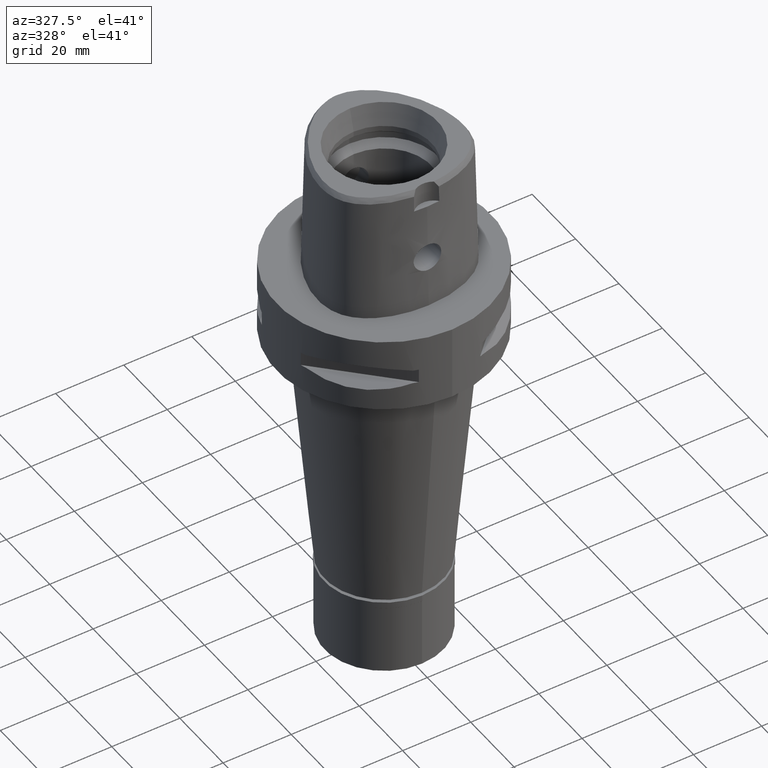
[diagram: clean part render]
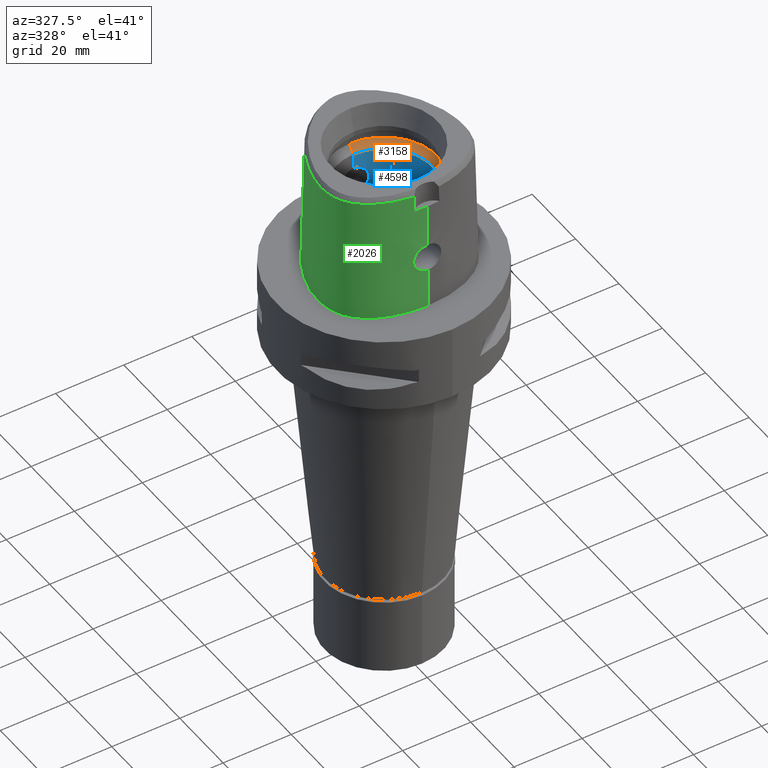
[diagram: same view with three faces highlighted in distinct colors, each labeled with its STEP entity id]
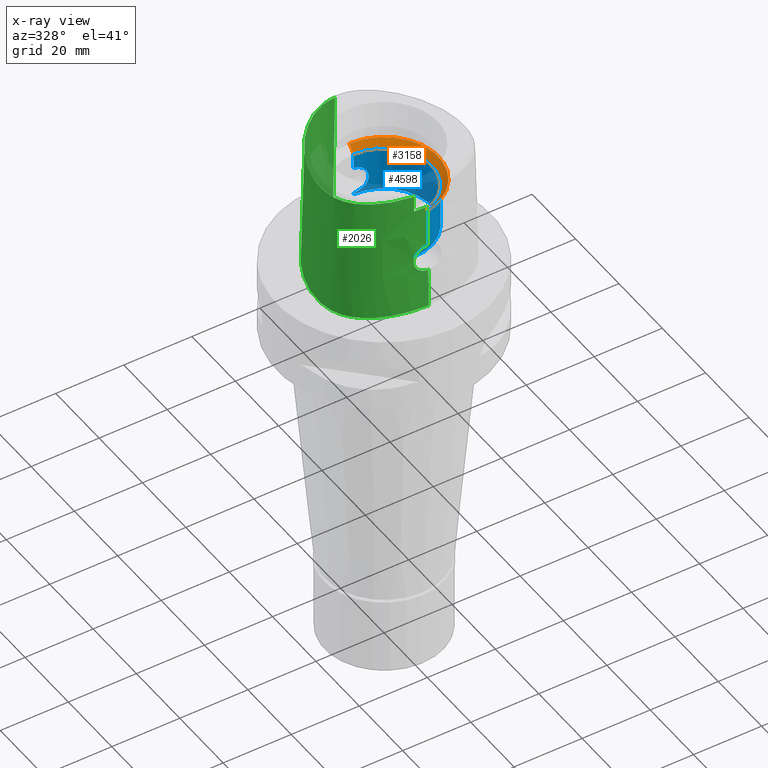
[diagram: x-ray of the same camera — body ghosted, the three highlighted faces saturated]
A machine part, auxiliary view with three faces highlighted in distinct colors.
The next image is the same camera in x-ray (body ghosted, the three faces saturated) — at least one of them is partly hidden behind the body in this view.
Their STEP definitions:

[orange] entity #3158 — the highlighted conical surface has half-angle 45 deg.
#96 = CARTESIAN_POINT ( 'NONE',  ( 0.0000000000000000000, -14.00000000000000000, 24.19999999999999929 ) ) ;
#143 = AXIS2_PLACEMENT_3D ( 'NONE', #2903, #1279, #3241 ) ;
#226 = AXIS2_PLACEMENT_3D ( 'NONE', #4396, #4103, #544 ) ;
#401 = AXIS2_PLACEMENT_3D ( 'NONE', #2883, #2066, #4830 ) ;
#474 = VECTOR ( 'NONE', #842, 1000.000000000000114 ) ;
#544 = DIRECTION ( 'NONE',  ( 0.0000000000000000000, -1.000000000000000000, 0.0000000000000000000 ) ) ;
#842 = DIRECTION ( 'NONE',  ( 0.0000000000000000000, -0.7071067811865474617, 0.7071067811865474617 ) ) ;
#940 = VERTEX_POINT ( 'NONE', #3439 ) ;
#947 = FACE_OUTER_BOUND ( 'NONE', #4611, .T. ) ;
#1107 = CARTESIAN_POINT ( 'NONE',  ( 0.0000000000000000000, 14.00000000000000000, 24.19999999999999929 ) ) ;
#1114 = EDGE_CURVE ( 'NONE', #1849, #4822, #2137, .T. ) ;
#1279 = DIRECTION ( 'NONE',  ( 0.0000000000000000000, 0.0000000000000000000, 1.000000000000000000 ) ) ;
#1510 = DIRECTION ( 'NONE',  ( 0.0000000000000000000, 0.7071067811865474617, 0.7071067811865474617 ) ) ;
#1692 = LINE ( 'NONE', #3246, #474 ) ;
#1698 = CARTESIAN_POINT ( 'NONE',  ( 0.0000000000000000000, 16.00000000000000000, 26.20000000000000284 ) ) ;
#1849 = VERTEX_POINT ( 'NONE', #96 ) ;
#1977 = VECTOR ( 'NONE', #1510, 1000.000000000000114 ) ;
#2066 = DIRECTION ( 'NONE',  ( 0.0000000000000000000, 0.0000000000000000000, -1.000000000000000000 ) ) ;
#2137 = CIRCLE ( 'NONE', #226, 14.00000000000000000 ) ;
#2504 = EDGE_CURVE ( 'NONE', #1849, #940, #1692, .T. ) ;
#2883 = CARTESIAN_POINT ( 'NONE',  ( 0.0000000000000000000, 0.0000000000000000000, 26.20000000000000284 ) ) ;
#2903 = CARTESIAN_POINT ( 'NONE',  ( 0.0000000000000000000, 0.0000000000000000000, 25.19999999999999929 ) ) ;
#2930 = ORIENTED_EDGE ( 'NONE', *, *, #1114, .F. ) ;
#3158 = ADVANCED_FACE ( 'NONE', ( #947 ), #5022, .F. ) ;
#3241 = DIRECTION ( 'NONE',  ( 0.0000000000000000000, 1.000000000000000000, 0.0000000000000000000 ) ) ;
#3246 = CARTESIAN_POINT ( 'NONE',  ( 0.0000000000000000000, -14.00000000000000000, 24.19999999999999929 ) ) ;
#3439 = CARTESIAN_POINT ( 'NONE',  ( 0.0000000000000000000, -16.00000000000000000, 26.20000000000000284 ) ) ;
#3483 = LINE ( 'NONE', #5057, #1977 ) ;
#3593 = ORIENTED_EDGE ( 'NONE', *, *, #2504, .T. ) ;
#3876 = ORIENTED_EDGE ( 'NONE', *, *, #3993, .F. ) ;
#3993 = EDGE_CURVE ( 'NONE', #4822, #4203, #3483, .T. ) ;
#4081 = EDGE_CURVE ( 'NONE', #4203, #940, #4444, .T. ) ;
#4103 = DIRECTION ( 'NONE',  ( 0.0000000000000000000, 0.0000000000000000000, 1.000000000000000000 ) ) ;
#4203 = VERTEX_POINT ( 'NONE', #1698 ) ;
#4396 = CARTESIAN_POINT ( 'NONE',  ( 0.0000000000000000000, 0.0000000000000000000, 24.19999999999999929 ) ) ;
#4444 = CIRCLE ( 'NONE', #401, 16.00000000000000000 ) ;
#4539 = ORIENTED_EDGE ( 'NONE', *, *, #4081, .F. ) ;
#4611 = EDGE_LOOP ( 'NONE', ( #4539, #3876, #2930, #3593 ) ) ;
#4822 = VERTEX_POINT ( 'NONE', #1107 ) ;
#4830 = DIRECTION ( 'NONE',  ( 0.0000000000000000000, 1.000000000000000000, 0.0000000000000000000 ) ) ;
#5022 = CONICAL_SURFACE ( 'NONE', #143, 15.00000000000000000, 0.7853981633972997312 ) ;
#5057 = CARTESIAN_POINT ( 'NONE',  ( 0.0000000000000000000, 14.00000000000000000, 24.19999999999999929 ) ) ;

[blue] entity #4598 — the highlighted cylindrical surface (partial cylindrical patch) has radius 14 mm, axis along (0, 0, -1).
#65 = AXIS2_PLACEMENT_3D ( 'NONE', #3471, #3046, #3545 ) ;
#90 = CARTESIAN_POINT ( 'NONE',  ( 2.217806395109848783, 13.82320634840191609, 12.11121632281193605 ) ) ;
#96 = CARTESIAN_POINT ( 'NONE',  ( 0.0000000000000000000, -14.00000000000000000, 24.19999999999999929 ) ) ;
#112 = CARTESIAN_POINT ( 'NONE',  ( 2.083402352693820347, 13.84411649686240153, 12.02679904731587435 ) ) ;
#120 = CARTESIAN_POINT ( 'NONE',  ( 0.5031329879872217248, -13.99299628181930721, 19.52713608390235223 ) ) ;
#134 = CARTESIAN_POINT ( 'NONE',  ( 2.987551070598235103, 13.67820116345343351, 12.75916637442935020 ) ) ;
#167 = CARTESIAN_POINT ( 'NONE',  ( 2.128115661502098632, 13.83734960245050161, 12.05387220701158668 ) ) ;
#176 = CARTESIAN_POINT ( 'NONE',  ( 3.754236443711725268, -13.48734669257251717, 13.98069631227824061 ) ) ;
#191 = CARTESIAN_POINT ( 'NONE',  ( 4.050104837865987406, 13.40137507185002264, 15.25494482419060205 ) ) ;
#198 = CARTESIAN_POINT ( 'NONE',  ( 2.225307842471148767, -13.82200032481050300, 18.88386244170732198 ) ) ;
#220 = B_SPLINE_CURVE_WITH_KNOTS ( 'NONE', 3,
 ( #911, #2815, #120, #1655, #2452, #4397, #1707, #2430, #941, #492, #1326, #2512, #547, #4012, #2125, #460, #2043, #1272, #3629, #2839, #198, #2578, #3447, #4969, #223, #3019, #4187, #3783, #641, #2969, #4595, #3392, #674, #2252, #254, #2198, #4106, #2628, #3844, #1866, #2227, #2994, #4549, #3739, #1472, #1042, #5015, #1400, #1020, #3048, #1067, #1814, #3363, #4214, #3813, #280, #4518, #2533, #4163, #2600, #568, #2151, #618, #4630, #4991, #176, #1426, #1763, #3340, #4913, #1373, #2178, #2941, #990, #1841, #2556, #4573, #4936, #3420, #1448, #1788, #4138, #596, #3763, #383, #4345, #1968, #4712, #4739, #1552, #3523, #305, #1887, #5044, #4684, #5097, #2657, #4301, #3963, #3546, #1923, #778, #409, #1581, #3104, #2331, #1946, #1201, #4660 ),
 .UNSPECIFIED., .F., .F.,
 ( 4, 2, 2, 1, 1, 2, 2, 2, 2, 1, 1, 1, 2, 2, 2, 2, 1, 2, 2, 2, 2, 1, 1, 1, 2, 2, 2, 2, 1, 1, 2, 2, 2, 2, 2, 2, 1, 1, 1, 2, 2, 2, 2, 1, 1, 1, 2, 2, 2, 2, 2, 2, 2, 2, 1, 1, 1, 2, 2, 2, 2, 1, 2, 2, 4 ),
 ( 0.0000000000000000000, 0.06250000000000927036, 0.09375000000001382228, 0.1093750000000160705, 0.1171875000000173056, 0.1210937500000179301, 0.1250000000000185407, 0.1562500000000231204, 0.1718750000000253686, 0.1796875000000265343, 0.1835937500000270617, 0.1855468750000273392, 0.1865234375000274503, 0.1875000000000275613, 0.2187500000000220102, 0.2343750000000194844, 0.2421875000000182354, 0.2460937500000173472, 0.2500000000000164313, 0.2812500000000076605, 0.2968750000000029976, 0.3046875000000007216, 0.3085937499999996114, 0.3105468749999990008, 0.3115234374999987788, 0.3124999999999986122, 0.3437499999999862887, 0.3593749999999801270, 0.3671874999999770739, 0.3710937499999751865, 0.3730468749999741873, 0.3749999999999731881, 0.4374999999999590883, 0.4999999999999449329, 0.5624999999999307221, 0.5937499999999237277, 0.6093749999999201750, 0.6171874999999185096, 0.6210937499999176215, 0.6230468749999172884, 0.6249999999999170663, 0.6562499999999140687, 0.6718749999999126254, 0.6796874999999118483, 0.6835937499999114042, 0.6855468749999110711, 0.6865234374999110711, 0.6874999999999110711, 0.7187499999999164002, 0.7343749999999190647, 0.7421874999999206191, 0.7499999999999220623, 0.7812499999999285016, 0.7968749999999316103, 0.8046874999999330536, 0.8085937499999338307, 0.8105468749999343858, 0.8115234374999347189, 0.8124999999999350520, 0.8437499999999454880, 0.8593749999999508171, 0.8671874999999537037, 0.8710937499999550360, 0.8749999999999563682, 1.000000000000000000 ),
 .UNSPECIFIED. ) ;
#223 = CARTESIAN_POINT ( 'NONE',  ( 2.564513564538566381, -13.76306012767575027, 18.63532267621785721 ) ) ;
#226 = AXIS2_PLACEMENT_3D ( 'NONE', #4396, #4103, #544 ) ;
#243 = CARTESIAN_POINT ( 'NONE',  ( 3.557088666341913452, 13.54068383479801696, 17.43752651043655888 ) ) ;
#254 = CARTESIAN_POINT ( 'NONE',  ( 3.253150413689685827, -13.61695205283448651, 17.91296083946634354 ) ) ;
#268 = CARTESIAN_POINT ( 'NONE',  ( 2.993275682879698252, 13.67636296169212606, 18.22847972466929889 ) ) ;
#278 = ORIENTED_EDGE ( 'NONE', *, *, #2243, .F. ) ;
#280 = CARTESIAN_POINT ( 'NONE',  ( 4.050109039351834639, -13.40137442886772412, 15.74496307468995937 ) ) ;
#293 = CARTESIAN_POINT ( 'NONE',  ( 2.268763823005850444, 13.81494635581264063, 18.85488801691585081 ) ) ;
#305 = CARTESIAN_POINT ( 'NONE',  ( 2.322876849145397049, -13.80594766824255260, 12.18218411301524640 ) ) ;
#319 = AXIS2_PLACEMENT_3D ( 'NONE', #1335, #971, #1308 ) ;
#383 = CARTESIAN_POINT ( 'NONE',  ( 2.935464796373802532, -13.68884427350274180, 12.70941809086976626 ) ) ;
#409 = CARTESIAN_POINT ( 'NONE',  ( 1.643124464793714656, -13.90317117702281990, 11.79805916110036890 ) ) ;
#430 = ORIENTED_EDGE ( 'NONE', *, *, #2016, .F. ) ;
#460 = CARTESIAN_POINT ( 'NONE',  ( 2.083417932633863767, -13.84411419573542545, 18.97319161945814514 ) ) ;
#484 = CARTESIAN_POINT ( 'NONE',  ( 2.407026743236367672, 13.79179092510370097, 12.24014823374410454 ) ) ;
#492 = CARTESIAN_POINT ( 'NONE',  ( 1.499090398659422396, -13.91942988264788639, 19.26238249073400155 ) ) ;
#514 = CARTESIAN_POINT ( 'NONE',  ( 3.217025596349118555, 13.62560769370299951, 13.03875506105696758 ) ) ;
#539 = CARTESIAN_POINT ( 'NONE',  ( 3.681888265789251768, 13.50730898608306596, 13.81262890101244345 ) ) ;
#544 = DIRECTION ( 'NONE',  ( 0.0000000000000000000, -1.000000000000000000, 0.0000000000000000000 ) ) ;
#547 = CARTESIAN_POINT ( 'NONE',  ( 1.758914213640482505, -13.88947879502025096, 19.15051695545405863 ) ) ;
#568 = CARTESIAN_POINT ( 'NONE',  ( 3.864698997085207033, -13.45627842728040591, 14.28708901166261747 ) ) ;
#587 = CARTESIAN_POINT ( 'NONE',  ( 1.643405570493256196, 13.90359095056343719, 11.79642487328022149 ) ) ;
#589 = CARTESIAN_POINT ( 'NONE',  ( 0.0000000000000000000, -14.00000000000000000, 11.00000000000000000 ) ) ;
#596 = CARTESIAN_POINT ( 'NONE',  ( 3.020680690158251025, -13.67035562332215903, 12.80193796115283078 ) ) ;
#610 = CARTESIAN_POINT ( 'NONE',  ( 3.267839164474154234, 13.61368337661979133, 17.89612675440678657 ) ) ;
#618 = CARTESIAN_POINT ( 'NONE',  ( 3.792123985354859173, -13.47677720437687832, 14.07719458703809146 ) ) ;
#633 = CARTESIAN_POINT ( 'NONE',  ( 2.903809840836996337, 13.69558042595941671, 18.32352754237540182 ) ) ;
#641 = CARTESIAN_POINT ( 'NONE',  ( 2.794219043407630387, -13.71831254961071700, 18.43176999263129190 ) ) ;
#663 = CARTESIAN_POINT ( 'NONE',  ( 3.386213530919897519, 13.58429339872629527, 17.72172867399999774 ) ) ;
#674 = CARTESIAN_POINT ( 'NONE',  ( 3.092415008777622987, -13.65466569420119747, 18.11866219988991489 ) ) ;
#690 = CARTESIAN_POINT ( 'NONE',  ( 4.027216825694031499, 13.40877103518722357, 14.99603235332364903 ) ) ;
#712 = CARTESIAN_POINT ( 'NONE',  ( 1.029184106487188499, 13.97152837429127814, 19.45627297032396186 ) ) ;
#778 = CARTESIAN_POINT ( 'NONE',  ( 1.686553841207264925, -13.89794860812547839, 11.81773595106222707 ) ) ;
#872 = CARTESIAN_POINT ( 'NONE',  ( 2.564495781835727684, 13.76306347781942740, 12.36466282433596042 ) ) ;
#911 = CARTESIAN_POINT ( 'NONE',  ( 0.0000000000000000000, -14.00000000000000000, 19.55000000000000071 ) ) ;
#935 = CARTESIAN_POINT ( 'NONE',  ( 3.344202712280511136, 13.59470072215733438, 13.21548413948281997 ) ) ;
#941 = CARTESIAN_POINT ( 'NONE',  ( 1.467178111794469331, -13.92282230864166337, 19.27494137943967090 ) ) ;
#956 = CARTESIAN_POINT ( 'NONE',  ( 1.419273682516925206, 13.92782810608995625, 11.70655701251878789 ) ) ;
#971 = DIRECTION ( 'NONE',  ( 0.0000000000000000000, 0.0000000000000000000, -1.000000000000000000 ) ) ;
#978 = CARTESIAN_POINT ( 'NONE',  ( 3.359020109898814610, 13.59103542221254735, 13.23737089536243872 ) ) ;
#990 = CARTESIAN_POINT ( 'NONE',  ( 3.410743495965109506, -13.57816568318650319, 13.31599196299310606 ) ) ;
#1011 = CARTESIAN_POINT ( 'NONE',  ( 3.377713256182831802, 13.58640893255668480, 17.73462749921339565 ) ) ;
#1020 = CARTESIAN_POINT ( 'NONE',  ( 3.723011875655001912, -13.49602288719737331, 17.09439534805141747 ) ) ;
#1042 = CARTESIAN_POINT ( 'NONE',  ( 3.641267411105146845, -13.51833533353413053, 17.27419309999019603 ) ) ;
#1058 = CARTESIAN_POINT ( 'NONE',  ( 2.286392394009954199, 13.81203773452794792, 18.84292893667480584 ) ) ;
#1067 = CARTESIAN_POINT ( 'NONE',  ( 3.737887346436771896, -13.49190726130823492, 17.05908841075503446 ) ) ;
#1086 = CARTESIAN_POINT ( 'NONE',  ( 3.444114222038757500, 13.56977022798827548, 17.63138026178977569 ) ) ;
#1098 = LINE ( 'NONE', #5074, #5122 ) ;
#1107 = CARTESIAN_POINT ( 'NONE',  ( 0.0000000000000000000, 14.00000000000000000, 24.19999999999999929 ) ) ;
#1112 = CARTESIAN_POINT ( 'NONE',  ( 1.600065394692234744, 13.90814645047113807, 19.22055538723221702 ) ) ;
#1114 = EDGE_CURVE ( 'NONE', #1849, #4822, #2137, .T. ) ;
#1116 = CARTESIAN_POINT ( 'NONE',  ( 0.0000000000000000000, -14.00000000000000000, 11.44999999999999929 ) ) ;
#1201 = CARTESIAN_POINT ( 'NONE',  ( 0.4996170307577484926, -14.00000000000000355, 11.45000000000000107 ) ) ;
#1267 = CARTESIAN_POINT ( 'NONE',  ( 3.362135645915919735, 13.59026426608101623, 13.24199978628648466 ) ) ;
#1272 = CARTESIAN_POINT ( 'NONE',  ( 2.180430719051042576, -13.82916524275079695, 18.91303019140541508 ) ) ;
#1290 = CARTESIAN_POINT ( 'NONE',  ( 1.307187133397777368, 13.93893568339380096, 11.66569962606505406 ) ) ;
#1308 = DIRECTION ( 'NONE',  ( 0.0000000000000000000, -1.000000000000000000, 0.0000000000000000000 ) ) ;
#1316 = CARTESIAN_POINT ( 'NONE',  ( 3.253122838619350254, 13.61695847484784849, 13.08700209496323019 ) ) ;
#1326 = CARTESIAN_POINT ( 'NONE',  ( 1.516899316931221264, -13.91750090884374913, 19.25522928305834824 ) ) ;
#1335 = CARTESIAN_POINT ( 'NONE',  ( 0.0000000000000000000, 0.0000000000000000000, 39.89999999999999858 ) ) ;
#1341 = CARTESIAN_POINT ( 'NONE',  ( 3.361880068163155766, 13.59032751575134057, 13.24162249144547943 ) ) ;
#1365 = CARTESIAN_POINT ( 'NONE',  ( 3.321820541935854187, 13.60022405027051562, 13.18290148898179837 ) ) ;
#1373 = CARTESIAN_POINT ( 'NONE',  ( 3.524216152915720546, -13.54926445641719113, 13.50320070271054718 ) ) ;
#1399 = VECTOR ( 'NONE', #3778, 1000.000000000000000 ) ;
#1400 = CARTESIAN_POINT ( 'NONE',  ( 3.701476196187174939, -13.50195603623057394, 17.14416223943777595 ) ) ;
#1404 = CARTESIAN_POINT ( 'NONE',  ( 0.0000000000000000000, 14.00000000000000000, 11.00000000000000000 ) ) ;
#1418 = CARTESIAN_POINT ( 'NONE',  ( 2.935444872375262637, 13.68884853175270422, 18.29060286011752723 ) ) ;
#1426 = CARTESIAN_POINT ( 'NONE',  ( 3.750535583143311147, -13.48837563529405159, 13.97158931176705465 ) ) ;
#1440 = CARTESIAN_POINT ( 'NONE',  ( 3.649287754606132417, 13.51628378879347814, 17.26146357314931024 ) ) ;
#1448 = CARTESIAN_POINT ( 'NONE',  ( 3.267860856862455865, -13.61367823521695719, 13.10390269889959036 ) ) ;
#1462 = CARTESIAN_POINT ( 'NONE',  ( 1.571457089741343793, 13.91140721977019368, 19.23272879698699001 ) ) ;
#1472 = CARTESIAN_POINT ( 'NONE',  ( 3.612125191077118380, -13.52615234761961993, 17.33290907859854357 ) ) ;
#1491 = CARTESIAN_POINT ( 'NONE',  ( 2.130873031675732943, 13.83743700475326222, 18.94716637659228908 ) ) ;
#1511 = EDGE_CURVE ( 'NONE', #3489, #4531, #2056, .T. ) ;
#1552 = CARTESIAN_POINT ( 'NONE',  ( 2.425356293566213406, -13.78827839650478992, 12.25602180758893489 ) ) ;
#1581 = CARTESIAN_POINT ( 'NONE',  ( 1.600078814874695610, -13.90814512832970529, 11.77945038585863990 ) ) ;
#1649 = CARTESIAN_POINT ( 'NONE',  ( 2.230267356648572896, 13.82120012601264136, 12.11940589182371220 ) ) ;
#1655 = CARTESIAN_POINT ( 'NONE',  ( 0.8886530555221386907, -13.97198512727722708, 19.45346844016472687 ) ) ;
#1667 = EDGE_CURVE ( 'NONE', #4531, #2346, #1833, .T. ) ;
#1689 = CARTESIAN_POINT ( 'NONE',  ( 0.0000000000000000000, -14.00000000000000000, 19.55000000000000071 ) ) ;
#1700 = CARTESIAN_POINT ( 'NONE',  ( 2.312892876173468171, 13.80784294826023206, 12.17400404921139589 ) ) ;
#1707 = CARTESIAN_POINT ( 'NONE',  ( 1.307177758791879585, -13.93893633211208183, 19.33430355924328481 ) ) ;
#1725 = CARTESIAN_POINT ( 'NONE',  ( 3.737862436382984210, 13.49191471466118131, 13.94085186772397122 ) ) ;
#1756 = CARTESIAN_POINT ( 'NONE',  ( 2.180412222332861027, 13.82916808513869356, 12.08695799697060025 ) ) ;
#1763 = CARTESIAN_POINT ( 'NONE',  ( 3.702139074801068741, -13.50182043944851173, 13.85345734734345235 ) ) ;
#1779 = CARTESIAN_POINT ( 'NONE',  ( 3.702127444390315159, 13.50182339615068727, 17.14656876326777279 ) ) ;
#1788 = CARTESIAN_POINT ( 'NONE',  ( 3.144649004186137020, -13.64249969686727404, 12.94694166644987199 ) ) ;
#1814 = CARTESIAN_POINT ( 'NONE',  ( 3.740374405824665960, -13.49121797331927475, 17.05311813183928393 ) ) ;
#1819 = VECTOR ( 'NONE', #3474, 1000.000000000000000 ) ;
#1832 = CARTESIAN_POINT ( 'NONE',  ( 3.760688074393179203, 13.48555087701916833, 17.00326317844757540 ) ) ;
#1833 = LINE ( 'NONE', #589, #1399 ) ;
#1841 = CARTESIAN_POINT ( 'NONE',  ( 3.393648836074186104, -13.58244002078084911, 13.28961777949049328 ) ) ;
#1849 = VERTEX_POINT ( 'NONE', #96 ) ;
#1854 = CARTESIAN_POINT ( 'NONE',  ( 1.643112089889030569, 13.90317243032712291, 19.20194634168781533 ) ) ;
#1866 = CARTESIAN_POINT ( 'NONE',  ( 3.359058616892930615, -13.59102609449746524, 17.76257193801513523 ) ) ;
#1877 = CARTESIAN_POINT ( 'NONE',  ( 2.256421358878216488, 13.81696909001792939, 18.86319363595353593 ) ) ;
#1887 = CARTESIAN_POINT ( 'NONE',  ( 2.286401869867992875, -13.81203602587995682, 12.15707754369988791 ) ) ;
#1923 = CARTESIAN_POINT ( 'NONE',  ( 1.773869829254197228, -13.88717198021018717, 11.85856959830013402 ) ) ;
#1924 = LINE ( 'NONE', #1404, #1819 ) ;
#1927 = EDGE_CURVE ( 'NONE', #3242, #2346, #220, .T. ) ;
#1946 = CARTESIAN_POINT ( 'NONE',  ( 1.029195579404322602, -13.97152789805618234, 11.54372935798681610 ) ) ;
#1968 = CARTESIAN_POINT ( 'NONE',  ( 2.749429150134252708, -13.72794355113509290, 12.52109900936517839 ) ) ;
#2016 = EDGE_CURVE ( 'NONE', #3573, #4822, #1098, .T. ) ;
#2043 = CARTESIAN_POINT ( 'NONE',  ( 2.128132661579412055, -13.83734705125809406, 18.94611731528453902 ) ) ;
#2056 = CIRCLE ( 'NONE', #65, 14.00000000000000000 ) ;
#2068 = CARTESIAN_POINT ( 'NONE',  ( 3.612092317030220379, 13.52616139818937846, 13.66702611687112956 ) ) ;
#2094 = CARTESIAN_POINT ( 'NONE',  ( 2.794188265665984883, 13.71831884113747613, 12.56820068599706985 ) ) ;
#2117 = CARTESIAN_POINT ( 'NONE',  ( 2.749405349986303371, 13.72738952680676761, 12.52574890524282303 ) ) ;
#2125 = CARTESIAN_POINT ( 'NONE',  ( 1.994209348714211405, -13.85732070569914143, 19.02567586477819006 ) ) ;
#2137 = CIRCLE ( 'NONE', #226, 14.00000000000000000 ) ;
#2151 = CARTESIAN_POINT ( 'NONE',  ( 3.833378784112526194, -13.46518651549399692, 14.19006897785435939 ) ) ;
#2167 = ORIENTED_EDGE ( 'NONE', *, *, #1114, .T. ) ;
#2178 = CARTESIAN_POINT ( 'NONE',  ( 3.471407568577030922, -13.56281871369563952, 13.41360808466912857 ) ) ;
#2190 = CARTESIAN_POINT ( 'NONE',  ( 1.773859858298503012, 13.88717310935475524, 19.14143527715514992 ) ) ;
#2198 = CARTESIAN_POINT ( 'NONE',  ( 3.300146341774500947, -13.60553517928263823, 17.84781835532356453 ) ) ;
#2205 = CARTESIAN_POINT ( 'NONE',  ( 0.0000000000000000000, 14.00000000000000000, 11.44999999999999929 ) ) ;
#2215 = CARTESIAN_POINT ( 'NONE',  ( 2.356169659980356990, 13.80026630004203447, 18.79420345841271711 ) ) ;
#2227 = CARTESIAN_POINT ( 'NONE',  ( 3.361919059606737203, -13.59031805818605676, 17.75831946435156894 ) ) ;
#2243 = EDGE_CURVE ( 'NONE', #3489, #3391, #1924, .T. ) ;
#2244 = CARTESIAN_POINT ( 'NONE',  ( 1.832682128947450639, 13.87954668815114267, 19.11223895308327414 ) ) ;
#2252 = CARTESIAN_POINT ( 'NONE',  ( 3.217051634034765240, -13.62560167975882841, 17.96121095395449885 ) ) ;
#2267 = CARTESIAN_POINT ( 'NONE',  ( 3.953315574815617683, 13.43069190713402961, 16.38937041772095071 ) ) ;
#2289 = CARTESIAN_POINT ( 'NONE',  ( 3.850558670354384372, 13.46064117905768498, 14.21385490519483774 ) ) ;
#2331 = CARTESIAN_POINT ( 'NONE',  ( 1.559056483624804201, -13.91280418779705386, 11.76206681924216824 ) ) ;
#2346 = VERTEX_POINT ( 'NONE', #1116 ) ;
#2430 = CARTESIAN_POINT ( 'NONE',  ( 1.419263858834345582, -13.92782887280989179, 19.29344666031714439 ) ) ;
#2446 = CARTESIAN_POINT ( 'NONE',  ( 3.446439376995800608, 13.56939223702177699, 13.36783492912207905 ) ) ;
#2452 = CARTESIAN_POINT ( 'NONE',  ( 1.017639181859962605, -13.96323047955135976, 19.42236212085241220 ) ) ;
#2474 = CARTESIAN_POINT ( 'NONE',  ( 2.225288147325894528, 13.82200341650443498, 12.11612460655873313 ) ) ;
#2505 = CARTESIAN_POINT ( 'NONE',  ( 3.518019159262221862, 13.55099469856486749, 13.48901570195362432 ) ) ;
#2512 = CARTESIAN_POINT ( 'NONE',  ( 1.643402327050464296, -13.90359116573514342, 19.20357680875469342 ) ) ;
#2533 = CARTESIAN_POINT ( 'NONE',  ( 4.027167981713306588, -13.40875010522410271, 14.99686531038408965 ) ) ;
#2539 = CYLINDRICAL_SURFACE ( 'NONE', #319, 14.00000000000000000 ) ;
#2547 = CARTESIAN_POINT ( 'NONE',  ( 3.092390698714773567, 13.65467114209335264, 12.88130927472243847 ) ) ;
#2556 = CARTESIAN_POINT ( 'NONE',  ( 3.386236333437208756, -13.58428775399706723, 13.27830608079963248 ) ) ;
#2570 = CARTESIAN_POINT ( 'NONE',  ( 3.750524584725995147, 13.48837842770463169, 17.02843767657987328 ) ) ;
#2578 = CARTESIAN_POINT ( 'NONE',  ( 2.230287417959103902, -13.82119696819859556, 18.88058087293870813 ) ) ;
#2592 = CARTESIAN_POINT ( 'NONE',  ( 2.010501717821064460, 13.85534156541368667, 19.01828921528356986 ) ) ;
#2600 = CARTESIAN_POINT ( 'NONE',  ( 3.922079205923322043, -13.43983130148218663, 14.48117699414089365 ) ) ;
#2615 = CARTESIAN_POINT ( 'NONE',  ( 3.381252386275208188, 13.58552879951880676, 17.72927178203262955 ) ) ;
#2628 = CARTESIAN_POINT ( 'NONE',  ( 3.344238891804638847, -13.59469201712707331, 17.78446291344292973 ) ) ;
#2646 = CARTESIAN_POINT ( 'NONE',  ( 0.4996109250117751199, 13.99999999999999822, 19.54999999999999005 ) ) ;
#2657 = CARTESIAN_POINT ( 'NONE',  ( 2.255326728028075323, -13.81714821576341201, 12.13607046265122591 ) ) ;
#2672 = CARTESIAN_POINT ( 'NONE',  ( 2.749412118830250940, 13.72794699207909908, 18.47891641197558243 ) ) ;
#2815 = CARTESIAN_POINT ( 'NONE',  ( 0.2481241771905377536, -14.00000000000000355, 19.54999999999999361 ) ) ;
#2834 = CARTESIAN_POINT ( 'NONE',  ( 2.206585077432667852, 13.82500562469161487, 12.10388135703218460 ) ) ;
#2839 = CARTESIAN_POINT ( 'NONE',  ( 2.217825895404998970, -13.82320329824214689, 18.88877091521868579 ) ) ;
#2855 = CARTESIAN_POINT ( 'NONE',  ( 1.935022422099377248, 13.86568947271855201, 11.94154862979159937 ) ) ;
#2913 = CARTESIAN_POINT ( 'NONE',  ( 1.758911448488973184, 13.88947925419896201, 11.84948192320104532 ) ) ;
#2935 = CARTESIAN_POINT ( 'NONE',  ( 2.705631081828257845, 13.73602433004955259, 12.48611241062261534 ) ) ;
#2941 = CARTESIAN_POINT ( 'NONE',  ( 3.444134305082938941, -13.56976516763849183, 13.36865222194239422 ) ) ;
#2958 = CARTESIAN_POINT ( 'NONE',  ( 4.049894426081060317, 13.40142315477328694, 15.74850829864217161 ) ) ;
#2969 = CARTESIAN_POINT ( 'NONE',  ( 2.824278146714199078, -13.71216806335593041, 18.40282419416466908 ) ) ;
#2983 = CARTESIAN_POINT ( 'NONE',  ( 0.0000000000000000000, 14.00000000000000000, 19.55000000000000071 ) ) ;
#2994 = CARTESIAN_POINT ( 'NONE',  ( 3.362175151431368469, -13.59025468045884821, 17.75794138952503687 ) ) ;
#3008 = CARTESIAN_POINT ( 'NONE',  ( 2.322867095772036539, 13.80594945643857230, 18.81782271191790201 ) ) ;
#3019 = CARTESIAN_POINT ( 'NONE',  ( 2.619693227317868800, -13.75270887471485537, 18.58958572231111717 ) ) ;
#3028 = LINE ( 'NONE', #3454, #3640 ) ;
#3035 = CARTESIAN_POINT ( 'NONE',  ( 1.559041427489886278, 13.91280564626705818, 19.23793945981500997 ) ) ;
#3046 = DIRECTION ( 'NONE',  ( 0.0000000000000000000, 0.0000000000000000000, -1.000000000000000000 ) ) ;
#3048 = CARTESIAN_POINT ( 'NONE',  ( 3.731972597717101880, -13.49354487606111341, 17.07319389049521519 ) ) ;
#3066 = CARTESIAN_POINT ( 'NONE',  ( 2.474897425330298883, 13.77946391610721300, 18.70653994269108011 ) ) ;
#3104 = CARTESIAN_POINT ( 'NONE',  ( 1.571471244916244236, -13.91140584751420128, 11.76727716385215139 ) ) ;
#3126 = CARTESIAN_POINT ( 'NONE',  ( 0.0000000000000000000, 14.00000000000000000, 11.00000000000000000 ) ) ;
#3172 = ORIENTED_EDGE ( 'NONE', *, *, #1927, .F. ) ;
#3199 = ORIENTED_EDGE ( 'NONE', *, *, #4797, .T. ) ;
#3228 = CARTESIAN_POINT ( 'NONE',  ( 2.837973772893474411, 13.70934612522084173, 12.61054438063453098 ) ) ;
#3242 = VERTEX_POINT ( 'NONE', #1689 ) ;
#3253 = CARTESIAN_POINT ( 'NONE',  ( 1.467188112033413816, 13.92282148873381864, 11.72506250693289864 ) ) ;
#3276 = CARTESIAN_POINT ( 'NONE',  ( 1.017647129622376134, 13.96323008892529138, 11.57763991488771715 ) ) ;
#3334 = CARTESIAN_POINT ( 'NONE',  ( 1.210739730854810459, 13.94747155560755481, 11.63462642380360457 ) ) ;
#3340 = CARTESIAN_POINT ( 'NONE',  ( 3.649300473894191654, -13.51628050934238168, 13.73856294186508187 ) ) ;
#3354 = CARTESIAN_POINT ( 'NONE',  ( 0.0000000000000000000, 14.00000000000000000, 19.55000000000000071 ) ) ;
#3363 = CARTESIAN_POINT ( 'NONE',  ( 3.850575600140098587, -13.46063562733913699, 16.78609245254255100 ) ) ;
#3381 = CARTESIAN_POINT ( 'NONE',  ( 3.754225769600867846, 13.48734939608367966, 17.01933006533278814 ) ) ;
#3391 = VERTEX_POINT ( 'NONE', #2205 ) ;
#3392 = CARTESIAN_POINT ( 'NONE',  ( 2.987578035334788051, -13.67819521538854310, 18.24080360144242974 ) ) ;
#3408 = CARTESIAN_POINT ( 'NONE',  ( 3.098494805694566256, 13.65307097543445813, 18.10922060507405362 ) ) ;
#3420 = CARTESIAN_POINT ( 'NONE',  ( 3.329855789806605681, -13.59830196919637224, 13.19313464217331955 ) ) ;
#3434 = CARTESIAN_POINT ( 'NONE',  ( 3.864694685434272969, 13.45627952657940796, 16.71292491331624319 ) ) ;
#3447 = CARTESIAN_POINT ( 'NONE',  ( 2.312907190560118842, -13.80784060210500996, 18.82598581446445962 ) ) ;
#3454 = CARTESIAN_POINT ( 'NONE',  ( 0.0000000000000000000, -14.00000000000000000, 19.55000000000000071 ) ) ;
#3460 = CARTESIAN_POINT ( 'NONE',  ( 3.922078288965881399, 13.43983163058567598, 16.51882742556871264 ) ) ;
#3471 = CARTESIAN_POINT ( 'NONE',  ( 0.0000000000000000000, 0.0000000000000000000, 11.00000000000000000 ) ) ;
#3474 = DIRECTION ( 'NONE',  ( 0.0000000000000000000, 0.0000000000000000000, 1.000000000000000000 ) ) ;
#3489 = VERTEX_POINT ( 'NONE', #3126 ) ;
#3491 = EDGE_LOOP ( 'NONE', ( #278, #4280, #3610, #3172, #3199, #2167, #430, #4935 ) ) ;
#3523 = CARTESIAN_POINT ( 'NONE',  ( 2.356179768775664485, -13.80026442329979197, 12.20580376827560620 ) ) ;
#3545 = DIRECTION ( 'NONE',  ( 0.0000000000000000000, 1.000000000000000000, 0.0000000000000000000 ) ) ;
#3546 = CARTESIAN_POINT ( 'NONE',  ( 1.832691376705390729, -13.87954557477251960, 11.88776574652740337 ) ) ;
#3567 = EDGE_CURVE ( 'NONE', #3391, #3573, #4864, .T. ) ;
#3573 = VERTEX_POINT ( 'NONE', #3354 ) ;
#3610 = ORIENTED_EDGE ( 'NONE', *, *, #1667, .T. ) ;
#3629 = CARTESIAN_POINT ( 'NONE',  ( 2.206604282617290469, -13.82500263684288200, 18.89610616580604230 ) ) ;
#3640 = VECTOR ( 'NONE', #4610, 1000.000000000000000 ) ;
#3655 = CARTESIAN_POINT ( 'NONE',  ( 3.731947233726997659, 13.49355243646696678, 13.92674594029439028 ) ) ;
#3703 = CARTESIAN_POINT ( 'NONE',  ( 3.722985834075813294, 13.49603060517026876, 13.90554383511542191 ) ) ;
#3739 = CARTESIAN_POINT ( 'NONE',  ( 3.518056051314457644, -13.55098508632043242, 17.51091968151423828 ) ) ;
#3755 = CARTESIAN_POINT ( 'NONE',  ( 1.516910412645901429, 13.91749993127318064, 11.74477520274085229 ) ) ;
#3763 = CARTESIAN_POINT ( 'NONE',  ( 2.993295808963989391, -13.67635858830958995, 12.77154234734100235 ) ) ;
#3777 = CARTESIAN_POINT ( 'NONE',  ( 2.261340657161257095, 13.81616386827182019, 18.85988797640481351 ) ) ;
#3778 = DIRECTION ( 'NONE',  ( 0.0000000000000000000, 0.0000000000000000000, 1.000000000000000000 ) ) ;
#3783 = CARTESIAN_POINT ( 'NONE',  ( 2.749433055991873154, -13.72738395002673784, 18.47422555719835913 ) ) ;
#3802 = CARTESIAN_POINT ( 'NONE',  ( 3.144628172867338201, 13.64250443836072435, 18.05308396090352474 ) ) ;
#3813 = CARTESIAN_POINT ( 'NONE',  ( 4.027223470522174331, -13.40876944168840268, 16.00391502729123516 ) ) ;
#3833 = CARTESIAN_POINT ( 'NONE',  ( 3.410721871959659257, 13.57817107781601074, 17.68404181484999071 ) ) ;
#3844 = CARTESIAN_POINT ( 'NONE',  ( 3.354718119037594981, -13.59210031745545955, 17.76901166034746993 ) ) ;
#3857 = CARTESIAN_POINT ( 'NONE',  ( 3.393626394335426788, 13.58244558944580405, 17.71041667753680571 ) ) ;
#3941 = DIRECTION ( 'NONE',  ( 0.0000000000000000000, 0.0000000000000000000, 1.000000000000000000 ) ) ;
#3963 = CARTESIAN_POINT ( 'NONE',  ( 2.010509632162103877, -13.85534039797709305, 11.98171533900003638 ) ) ;
#4012 = CARTESIAN_POINT ( 'NONE',  ( 1.935032715177684270, -13.86568800702036341, 19.05844582710529167 ) ) ;
#4028 = CARTESIAN_POINT ( 'NONE',  ( 3.701448599127524108, 13.50196410077353448, 13.85577559946501047 ) ) ;
#4056 = CARTESIAN_POINT ( 'NONE',  ( 3.354680329558042740, 13.59210945296616124, 13.23093247310055709 ) ) ;
#4077 = CARTESIAN_POINT ( 'NONE',  ( 3.641236061999908014, 13.51834413261587109, 13.72574250724094469 ) ) ;
#4098 = CARTESIAN_POINT ( 'NONE',  ( 0.5031375785651610588, 13.99299620741434325, 11.47286437004442305 ) ) ;
#4103 = DIRECTION ( 'NONE',  ( 0.0000000000000000000, 0.0000000000000000000, 1.000000000000000000 ) ) ;
#4106 = CARTESIAN_POINT ( 'NONE',  ( 3.321853759881778778, -13.60021613421537623, 17.81705094770119757 ) ) ;
#4126 = CARTESIAN_POINT ( 'NONE',  ( 3.300115213668325165, 13.60554254247755246, 13.15213791935524590 ) ) ;
#4138 = CARTESIAN_POINT ( 'NONE',  ( 3.098515381818673919, -13.65306636118727823, 12.89080379846869207 ) ) ;
#4155 = CARTESIAN_POINT ( 'NONE',  ( 3.329833399432507335, 13.59830740143285155, 17.80689756936500245 ) ) ;
#4163 = CARTESIAN_POINT ( 'NONE',  ( 3.953314660131233893, -13.43069195178868647, 14.61062672898304804 ) ) ;
#4187 = CARTESIAN_POINT ( 'NONE',  ( 2.705656092557879422, -13.73601936354431174, 18.51386516685723294 ) ) ;
#4204 = CARTESIAN_POINT ( 'NONE',  ( 2.255317399664305000, 13.81714987027313235, 18.86393579140712973 ) ) ;
#4214 = CARTESIAN_POINT ( 'NONE',  ( 3.927475894212223206, -13.43840014691972407, 16.52342187617643177 ) ) ;
#4230 = CARTESIAN_POINT ( 'NONE',  ( 2.425345327374605287, 13.78828047748906549, 18.74398637652861765 ) ) ;
#4252 = CARTESIAN_POINT ( 'NONE',  ( 3.020660456626143464, 13.67036005578519386, 18.19808468408423963 ) ) ;
#4280 = ORIENTED_EDGE ( 'NONE', *, *, #1511, .T. ) ;
#4301 = CARTESIAN_POINT ( 'NONE',  ( 2.130881178393551956, -13.83743566613691911, 12.05283858998891766 ) ) ;
#4314 = CARTESIAN_POINT ( 'NONE',  ( 0.0000000000000000000, -14.00000000000000000, 11.00000000000000000 ) ) ;
#4345 = CARTESIAN_POINT ( 'NONE',  ( 2.903830259211071407, -13.69557610162038586, 12.67649343706872145 ) ) ;
#4396 = CARTESIAN_POINT ( 'NONE',  ( 0.0000000000000000000, 0.0000000000000000000, 24.19999999999999929 ) ) ;
#4397 = CARTESIAN_POINT ( 'NONE',  ( 1.210730804381419556, -13.94747211364479611, 19.36537636553163111 ) ) ;
#4411 = CARTESIAN_POINT ( 'NONE',  ( 2.824245245329735532, 13.71217485459649943, 12.59714380724674676 ) ) ;
#4433 = CARTESIAN_POINT ( 'NONE',  ( 1.994196793350470953, 13.85732250606946003, 11.97431708272922002 ) ) ;
#4488 = CARTESIAN_POINT ( 'NONE',  ( 3.740349717813418629, 13.49122537259350985, 13.94682241177603288 ) ) ;
#4518 = CARTESIAN_POINT ( 'NONE',  ( 4.049890164045741869, -13.40142381086893941, 15.25144457807852660 ) ) ;
#4531 = VERTEX_POINT ( 'NONE', #4314 ) ;
#4538 = CARTESIAN_POINT ( 'NONE',  ( 3.770295828577627351, 13.48287449147565376, 16.97915267913733572 ) ) ;
#4549 = CARTESIAN_POINT ( 'NONE',  ( 3.446478207058913057, -13.56938250738010154, 17.63210248802777613 ) ) ;
#4563 = CARTESIAN_POINT ( 'NONE',  ( 3.833372613769522541, 13.46518805228033244, 16.80994934954906128 ) ) ;
#4573 = CARTESIAN_POINT ( 'NONE',  ( 3.381275431626924455, -13.58552310375170791, 13.27076317274760875 ) ) ;
#4587 = CARTESIAN_POINT ( 'NONE',  ( 3.927462924626538232, 13.43840419036665779, 14.47652859066138653 ) ) ;
#4595 = CARTESIAN_POINT ( 'NONE',  ( 2.838009928938158843, -13.70933862722830732, 18.38942009770882535 ) ) ;
#4598 = ADVANCED_FACE ( 'NONE', ( #4876 ), #2539, .F. ) ;
#4610 = DIRECTION ( 'NONE',  ( 0.0000000000000000000, 0.0000000000000000000, 1.000000000000000000 ) ) ;
#4618 = CARTESIAN_POINT ( 'NONE',  ( 3.524199374407259722, 13.54926875963957933, 17.49682897130887227 ) ) ;
#4630 = CARTESIAN_POINT ( 'NONE',  ( 3.770305607764555589, -13.48287202864340983, 14.02087226159932598 ) ) ;
#4648 = CARTESIAN_POINT ( 'NONE',  ( 1.686542341523468602, 13.89794981159688980, 19.18226932052732536 ) ) ;
#4660 = CARTESIAN_POINT ( 'NONE',  ( 0.0000000000000000000, -14.00000000000000000, 11.44999999999999929 ) ) ;
#4684 = CARTESIAN_POINT ( 'NONE',  ( 2.261349992724984048, -13.81616220668699135, 12.14011830680945359 ) ) ;
#4712 = CARTESIAN_POINT ( 'NONE',  ( 2.632435958575416013, -13.75053331389626265, 12.41927859782405363 ) ) ;
#4739 = CARTESIAN_POINT ( 'NONE',  ( 2.474909159318730900, -13.77946166276214512, 12.29346908457493903 ) ) ;
#4797 = EDGE_CURVE ( 'NONE', #3242, #1849, #3028, .T. ) ;
#4808 = CARTESIAN_POINT ( 'NONE',  ( 0.8886602406458201653, 13.97198482965736588, 11.54653314444766821 ) ) ;
#4822 = VERTEX_POINT ( 'NONE', #1107 ) ;
#4831 = CARTESIAN_POINT ( 'NONE',  ( 0.2481266265099588697, 14.00000000000000000, 11.44999999999999929 ) ) ;
#4852 = CARTESIAN_POINT ( 'NONE',  ( 2.619673022922138994, 13.75271275996641940, 12.41039726462985016 ) ) ;
#4864 = B_SPLINE_CURVE_WITH_KNOTS ( 'NONE', 3,
 ( #4906, #4831, #4098, #4808, #3276, #3334, #1290, #956, #3253, #4883, #3755, #587, #2913, #2855, #4433, #112, #167, #1756, #2834, #90, #2474, #1649, #1700, #484, #872, #4852, #2935, #2117, #2094, #4411, #3228, #134, #2547, #514, #1316, #4126, #1365, #935, #4056, #978, #1341, #1267, #2446, #2505, #2068, #4077, #539, #4028, #3703, #3655, #1725, #4488, #2289, #4587, #690, #191, #2958, #4957, #2267, #3460, #3434, #4563, #4982, #4538, #1832, #3381, #2570, #1779, #1440, #243, #4618, #5032, #1086, #3833, #3857, #663, #2615, #1011, #4155, #610, #3802, #3408, #4252, #268, #1418, #633, #2672, #5005, #3066, #4230, #2215, #3008, #1058, #293, #3777, #1877, #4204, #1491, #2592, #2244, #2190, #4648, #1854, #1112, #1462, #3035, #712, #2646, #2983 ),
 .UNSPECIFIED., .F., .F.,
 ( 4, 2, 2, 1, 1, 2, 2, 2, 2, 1, 1, 1, 2, 2, 2, 2, 1, 2, 2, 2, 2, 1, 1, 1, 2, 2, 2, 2, 1, 1, 2, 2, 2, 2, 2, 2, 1, 1, 1, 2, 2, 2, 2, 1, 1, 1, 2, 2, 2, 2, 2, 2, 2, 2, 1, 1, 1, 2, 2, 2, 2, 1, 2, 2, 4 ),
 ( 0.0000000000000000000, 0.06250000000002138567, 0.09375000000003208545, 0.1093750000000373868, 0.1171875000000400235, 0.1210937500000413142, 0.1250000000000425771, 0.1562500000000529021, 0.1718750000000581479, 0.1796875000000608402, 0.1835937500000622002, 0.1855468750000628664, 0.1865234375000631162, 0.1875000000000633660, 0.2187500000000720257, 0.2343750000000762446, 0.2421875000000783817, 0.2460937500000794087, 0.2500000000000804357, 0.2812500000000883738, 0.2968750000000922040, 0.3046875000000943134, 0.3085937500000953126, 0.3105468750000957567, 0.3115234375000957012, 0.3125000000000956457, 0.3437500000000897615, 0.3593750000000867639, 0.3671875000000850986, 0.3710937500000843214, 0.3730468750000841549, 0.3750000000000839884, 0.4375000000000763833, 0.5000000000000687228, 0.5625000000000610623, 0.5937500000000568434, 0.6093750000000547340, 0.6171875000000537348, 0.6210937500000535127, 0.6230468750000534017, 0.6250000000000532907, 0.6562500000000528466, 0.6718750000000526246, 0.6796875000000521805, 0.6835937500000519584, 0.6855468750000521805, 0.6865234375000519584, 0.6875000000000517364, 0.7187500000000504041, 0.7343750000000500711, 0.7421875000000499600, 0.7500000000000498490, 0.7812500000000496270, 0.7968750000000497380, 0.8046875000000501821, 0.8085937500000504041, 0.8105468750000504041, 0.8115234375000504041, 0.8125000000000504041, 0.8437500000000428546, 0.8593750000000391909, 0.8671875000000375255, 0.8710937500000365263, 0.8750000000000355271, 1.000000000000000000 ),
 .UNSPECIFIED. ) ;
#4876 = FACE_OUTER_BOUND ( 'NONE', #3491, .T. ) ;
#4883 = CARTESIAN_POINT ( 'NONE',  ( 1.499100513058812201, 13.91942902670013638, 11.73762153891946447 ) ) ;
#4906 = CARTESIAN_POINT ( 'NONE',  ( 0.0000000000000000000, 14.00000000000000000, 11.44999999999999929 ) ) ;
#4913 = CARTESIAN_POINT ( 'NONE',  ( 3.557104272889377139, -13.54067981904123386, 13.56250217898807264 ) ) ;
#4935 = ORIENTED_EDGE ( 'NONE', *, *, #3567, .F. ) ;
#4936 = CARTESIAN_POINT ( 'NONE',  ( 3.377736576018349091, -13.58640317541351017, 13.26540774977925174 ) ) ;
#4957 = CARTESIAN_POINT ( 'NONE',  ( 4.027172463322592044, 13.40874935841158333, 16.00310739076642363 ) ) ;
#4969 = CARTESIAN_POINT ( 'NONE',  ( 2.407040127011072617, -13.79178862310002351, 18.75984205963901275 ) ) ;
#4982 = CARTESIAN_POINT ( 'NONE',  ( 3.792115437646679243, 13.47677934324684657, 16.92282825343409058 ) ) ;
#4991 = CARTESIAN_POINT ( 'NONE',  ( 3.760698389514587792, -13.48554827043444426, 13.99676262888372236 ) ) ;
#5005 = CARTESIAN_POINT ( 'NONE',  ( 2.632421440604336027, 13.75053619292203422, 18.58073368517403168 ) ) ;
#5015 = CARTESIAN_POINT ( 'NONE',  ( 3.681917144146650500, -13.50730066062807033, 17.18730806981009707 ) ) ;
#5032 = CARTESIAN_POINT ( 'NONE',  ( 3.471388650637377449, 13.56282351116202278, 17.58642340598301246 ) ) ;
#5044 = CARTESIAN_POINT ( 'NONE',  ( 2.268773195310919366, -13.81494468099972117, 12.14511832105054800 ) ) ;
#5074 = CARTESIAN_POINT ( 'NONE',  ( 0.0000000000000000000, 14.00000000000000000, 19.55000000000000071 ) ) ;
#5097 = CARTESIAN_POINT ( 'NONE',  ( 2.256430671655175413, -13.81696743696902985, 12.13681261214186691 ) ) ;
#5122 = VECTOR ( 'NONE', #3941, 1000.000000000000000 ) ;

[green] entity #2026 — the highlighted face is a freeform B-spline surface patch.
#9 = CARTESIAN_POINT ( 'NONE',  ( -4.757642277158481647, 21.67478330407690379, 36.52186244848006424 ) ) ;
#28 = EDGE_CURVE ( 'NONE', #4357, #1009, #3648, .T. ) ;
#39 = CARTESIAN_POINT ( 'NONE',  ( -16.77374378229000129, -15.44292467013000092, 11.93048549236999989 ) ) ;
#63 = CARTESIAN_POINT ( 'NONE',  ( -11.02138175375999829, -18.31230440994000119, 24.59140887203999881 ) ) ;
#73 = CARTESIAN_POINT ( 'NONE',  ( -2.095753548412726097, -20.13818364214429835, 18.96577014705994912 ) ) ;
#92 = CARTESIAN_POINT ( 'NONE',  ( -21.44619279036999870, -6.759806530355999321, 24.59140887203999881 ) ) ;
#98 = CARTESIAN_POINT ( 'NONE',  ( -2.141634863661368016, -20.13611892945429460, 18.93776449056523248 ) ) ;
#115 = CARTESIAN_POINT ( 'NONE',  ( -14.17879752722000042, 15.44741190372999995, 11.93048549236999989 ) ) ;
#121 = CARTESIAN_POINT ( 'NONE',  ( -2.187955111050584378, -20.13397228737159139, 18.90818030783799841 ) ) ;
#137 = CARTESIAN_POINT ( 'NONE',  ( -17.53318563687000164, 10.12278921706000112, 24.59140887203999881 ) ) ;
#150 = CARTESIAN_POINT ( 'NONE',  ( -3.520475118947736348, -20.16064927175107968, 13.49656734865833663 ) ) ;
#174 = EDGE_CURVE ( 'NONE', #3353, #1009, #3948, .T. ) ;
#180 = CARTESIAN_POINT ( 'NONE',  ( -3.704467467891572774, -20.04996865237282222, 17.13733399074459030 ) ) ;
#193 = CARTESIAN_POINT ( 'NONE',  ( 0.6718639798966999921, -20.05378872477999863, 24.59140887203999881 ) ) ;
#203 = CARTESIAN_POINT ( 'NONE',  ( -1.703764700877000038E-11, 22.56201468012000078, 36.52186680743999858 ) ) ;
#222 = ORIENTED_EDGE ( 'NONE', *, *, #174, .F. ) ;
#247 = CARTESIAN_POINT ( 'NONE',  ( -6.175998540423000449, -19.37631760496000410, 37.25233225169999685 ) ) ;
#263 = CARTESIAN_POINT ( 'NONE',  ( -19.64947365781719668, -12.82525390565452916, 4.037040778168306254E-08 ) ) ;
#322 = ORIENTED_EDGE ( 'NONE', *, *, #28, .T. ) ;
#323 = CARTESIAN_POINT ( 'NONE',  ( -17.90324032096780371, -13.53935111954983306, 36.52186244848006424 ) ) ;
#335 = CARTESIAN_POINT ( 'NONE',  ( 0.7042335226679000693, 23.15549812141000174, 11.93048549236999989 ) ) ;
#358 = CARTESIAN_POINT ( 'NONE',  ( -2.373090252606000039, 22.37624316004999869, 37.25233225169999685 ) ) ;
#373 = CARTESIAN_POINT ( 'NONE',  ( -21.14970188363690085, -6.717195958887385743, 36.52186244848006424 ) ) ;
#376 = CARTESIAN_POINT ( 'NONE',  ( 4.711983029180999766E-11, 23.47499999999000053, 5.406786129924998921E-14 ) ) ;
#379 = EDGE_LOOP ( 'NONE', ( #222, #1650, #2124, #4407, #1690, #2555, #901, #322 ) ) ;
#397 = CARTESIAN_POINT ( 'NONE',  ( -13.70645028111630914, 15.04851272300537346, 36.52186244848006424 ) ) ;
#418 = CARTESIAN_POINT ( 'NONE',  ( -1.320565687274587896, -20.16697761691573731, 19.32976498246028285 ) ) ;
#423 = CARTESIAN_POINT ( 'NONE',  ( -21.32871527669893297, -4.105831244394194890, 36.52186244848006424 ) ) ;
#434 = CARTESIAN_POINT ( 'NONE',  ( -20.65947724618000336, -8.729764282284000032, 37.25233225169999685 ) ) ;
#441 = CARTESIAN_POINT ( 'NONE',  ( -1.533377486154582581, -20.16026360294686626, 19.24851053760752961 ) ) ;
#456 = CARTESIAN_POINT ( 'NONE',  ( -14.21104783588000053, -16.40237677410000217, 37.25233225169999685 ) ) ;
#465 = CARTESIAN_POINT ( 'NONE',  ( -2.852856104024933170, -20.09931387729061569, 18.37467926461876999 ) ) ;
#469 = B_SPLINE_CURVE_WITH_KNOTS ( 'NONE', 3,
 ( #1123, #2759, #751, #3940 ),
 .UNSPECIFIED., .F., .F.,
 ( 4, 4 ),
 ( 0.0000000000000000000, 1.000000000000000000 ),
 .UNSPECIFIED. ) ;
#487 = CARTESIAN_POINT ( 'NONE',  ( -4.750826078583999745, 21.65775770357999974, 37.25233225169999685 ) ) ;
#497 = CARTESIAN_POINT ( 'NONE',  ( -2.781497320433747866, -20.10345565782015242, 18.44409576488593316 ) ) ;
#508 = EDGE_CURVE ( 'NONE', #1447, #4357, #601, .T. ) ;
#516 = CARTESIAN_POINT ( 'NONE',  ( -13.93560853044000147, 15.24203780156000043, 24.59140887203999881 ) ) ;
#523 = CARTESIAN_POINT ( 'NONE',  ( -3.646271025386951692, -20.14180172674265634, 13.73229968810843360 ) ) ;
#542 = CARTESIAN_POINT ( 'NONE',  ( -10.34823226964999954, 18.70095486219999970, 24.59140887203999881 ) ) ;
#548 = CARTESIAN_POINT ( 'NONE',  ( -4.019649019913691390, -20.04316019033999652, 16.01163126942446269 ) ) ;
#573 = CARTESIAN_POINT ( 'NONE',  ( -3.553766164807453887, -20.15576042543209923, 13.55638603583962443 ) ) ;
#601 = LINE ( 'NONE', #203, #897 ) ;
#635 = CARTESIAN_POINT ( 'NONE',  ( -6.344715577619000513, -20.31619965480999923, -0.7304378872883000584 ) ) ;
#646 = CARTESIAN_POINT ( 'NONE',  ( -0.5047993661926269970, -20.38876923348000858, 11.45000000000000107 ) ) ;
#656 = B_SPLINE_CURVE_WITH_KNOTS ( 'NONE', 3,
 ( #1137, #3994, #2697, #741, #1088, #2321, #418, #2001, #1616, #3186, #441, #2246, #2024, #1060, #884, #3633, #73, #98, #121, #4420, #2842, #2154, #4014, #2454, #4039, #497, #919, #1709, #465, #2079, #3743, #3689, #3321, #2923, #3663, #1686, #1251, #180, #2047, #1275, #3263, #4471, #4839, #1300, #2866, #548, #3208, #4398, #3289, #942, #4446, #4789, #4894, #4498, #2534, #2899, #2513, #4063, #3714, #4086, #856, #4110, #2488, #523, #573, #150, #2102, #4867, #1351, #1328, #966, #1658, #2819, #2126, #1744, #2432, #3237, #4815, #1101, #1452, #4993, #3397, #3847, #1766, #703, #4521, #1403, #2257, #5019, #1844, #4635, #2201, #2581, #646, #2997 ),
 .UNSPECIFIED., .F., .F.,
 ( 4, 2, 2, 1, 1, 1, 2, 2, 2, 2, 1, 2, 2, 2, 1, 1, 1, 2, 2, 2, 2, 2, 1, 1, 2, 2, 2, 2, 1, 2, 2, 2, 2, 1, 1, 1, 2, 2, 2, 2, 1, 2, 2, 2, 1, 1, 1, 2, 2, 2, 2, 2, 1, 1, 2, 2, 4 ),
 ( 0.0000000000000000000, 0.06250000000000804912, 0.09375000000001200429, 0.1093750000000138778, 0.1171875000000148076, 0.1210937500000151545, 0.1230468750000154737, 0.1250000000000157929, 0.1562500000000184852, 0.1718750000000197897, 0.1796875000000204281, 0.1835937500000205391, 0.1875000000000206501, 0.2187500000000221767, 0.2343750000000228983, 0.2421875000000233147, 0.2460937500000237865, 0.2480468750000237310, 0.2500000000000236478, 0.3125000000000220379, 0.3437500000000212053, 0.3593750000000208722, 0.3671875000000206501, 0.3710937500000205391, 0.3730468750000200395, 0.3750000000000195954, 0.4375000000000068834, 0.4687500000000000555, 0.4843749999999967248, 0.4921874999999950040, 0.4999999999999932832, 0.5624999999999806821, 0.5937499999999746869, 0.6093749999999718003, 0.6171874999999703570, 0.6210937499999695799, 0.6230468749999692468, 0.6249999999999688027, 0.6562499999999672484, 0.6718749999999666933, 0.6796874999999662492, 0.6835937499999661382, 0.6874999999999659162, 0.7187499999999655831, 0.7343749999999654721, 0.7421874999999652500, 0.7460937499999651390, 0.7480468749999652500, 0.7499999999999652500, 0.8124999999999722444, 0.8437499999999760192, 0.8593749999999779066, 0.8671874999999789058, 0.8710937499999794609, 0.8730468749999797939, 0.8749999999999800160, 1.000000000000000000 ),
 .UNSPECIFIED. ) ;
#683 = CARTESIAN_POINT ( 'NONE',  ( -2.113823673004654236, -20.67499999898744534, 4.037040778168306254E-08 ) ) ;
#701 = FACE_OUTER_BOUND ( 'NONE', #379, .T. ) ;
#703 = CARTESIAN_POINT ( 'NONE',  ( -1.812541018728651698, -20.33144879143423367, 11.87771303033797388 ) ) ;
#723 = CARTESIAN_POINT ( 'NONE',  ( 0.6850313999078999627, 22.83959031095000114, 24.59140887203999881 ) ) ;
#733 = CARTESIAN_POINT ( 'NONE',  ( -21.55524825912155151, -8.996025390336564342, 4.037040778168306254E-08 ) ) ;
#741 = CARTESIAN_POINT ( 'NONE',  ( -0.8941136475783435511, -20.17742596329177474, 19.45229334933507204 ) ) ;
#751 = CARTESIAN_POINT ( 'NONE',  ( -2.503154198992659119, -19.81241979316328994, 31.80000012753031413 ) ) ;
#752 = CARTESIAN_POINT ( 'NONE',  ( -0.5657070165086999225, 22.56734877078000068, 37.25233225169999685 ) ) ;
#798 = CARTESIAN_POINT ( 'NONE',  ( -1.703764700877000038E-11, 22.56201468012000078, 36.52186680743999858 ) ) ;
#799 = CARTESIAN_POINT ( 'NONE',  ( -0.5985508141473999677, 23.20171269325000196, 11.93048549236999989 ) ) ;
#825 = CARTESIAN_POINT ( 'NONE',  ( -13.69241953364999986, 15.03666369940000003, 37.25233225169999685 ) ) ;
#840 = CARTESIAN_POINT ( 'NONE',  ( -10.15538788052959873, 18.47129535093593233, 36.52186244848006424 ) ) ;
#852 = CARTESIAN_POINT ( 'NONE',  ( -20.46725036964999944, 4.555493622503000495, 11.93048549236999989 ) ) ;
#856 = CARTESIAN_POINT ( 'NONE',  ( -3.748882549353760751, -20.12487725615873302, 13.96753193210146371 ) ) ;
#875 = CARTESIAN_POINT ( 'NONE',  ( -21.05621877348999860, -0.4440252187929999983, 37.25233225169999685 ) ) ;
#884 = CARTESIAN_POINT ( 'NONE',  ( -1.944872162930868287, -20.14473830020673617, 19.05307826098890445 ) ) ;
#897 = VECTOR ( 'NONE', #1793, 999.9999999999998863 ) ;
#901 = ORIENTED_EDGE ( 'NONE', *, *, #508, .T. ) ;
#903 = CARTESIAN_POINT ( 'NONE',  ( -21.62788384642000139, -4.104079499381000140, 24.59140887203999881 ) ) ;
#919 = CARTESIAN_POINT ( 'NONE',  ( -2.823299992936002756, -20.10104229143709276, 18.40378355436402202 ) ) ;
#937 = CARTESIAN_POINT ( 'NONE',  ( -7.420053096562999606, 21.05635738247000077, 11.93048549236999989 ) ) ;
#942 = CARTESIAN_POINT ( 'NONE',  ( -4.049663826248573351, -20.05088590020230299, 15.56119206774690511 ) ) ;
#959 = CARTESIAN_POINT ( 'NONE',  ( -1.870070487590999919, -20.39691384145999820, 11.93048549236999989 ) ) ;
#966 = CARTESIAN_POINT ( 'NONE',  ( -3.377353639916971240, -20.18061854612786732, 13.26476903757087200 ) ) ;
#1008 = CARTESIAN_POINT ( 'NONE',  ( 0.0000000000000000000, -20.18628283968999781, 19.55000000000000071 ) ) ;
#1009 = VERTEX_POINT ( 'NONE', #4550 ) ;
#1035 = CARTESIAN_POINT ( 'NONE',  ( -4.467522189396032850, -19.48130287050684473, 36.52186244848006424 ) ) ;
#1060 = CARTESIAN_POINT ( 'NONE',  ( -1.768917262170793814, -20.15190475906381451, 19.14568281053294285 ) ) ;
#1061 = CARTESIAN_POINT ( 'NONE',  ( 0.4520368071085999473, -20.37458452152999655, 11.93048549236999989 ) ) ;
#1088 = CARTESIAN_POINT ( 'NONE',  ( -1.025211814383784503, -20.17465818941732536, 19.42048404905371228 ) ) ;
#1101 = CARTESIAN_POINT ( 'NONE',  ( -2.875757950341225389, -20.24102512592877545, 12.64823125461331266 ) ) ;
#1123 = CARTESIAN_POINT ( 'NONE',  ( 2.041042029990999821E-08, -19.88004246002000031, 31.80000004972000127 ) ) ;
#1124 = CARTESIAN_POINT ( 'NONE',  ( 0.7234356454279000648, 23.47140593186999880, -0.7304378872883000584 ) ) ;
#1136 = CARTESIAN_POINT ( 'NONE',  ( -0.7901461696973544058, 22.56201478746343270, 36.52186244848006424 ) ) ;
#1137 = CARTESIAN_POINT ( 'NONE',  ( 0.0000000000000000000, -20.18628283968999781, 19.55000000000000071 ) ) ;
#1167 = CARTESIAN_POINT ( 'NONE',  ( -3.637738201363999835, -19.56971413236999879, 36.52186244848000030 ) ) ;
#1211 = CARTESIAN_POINT ( 'NONE',  ( -20.09619618741035296, -10.23243843868015723, 36.52186244848006424 ) ) ;
#1220 = CARTESIAN_POINT ( 'NONE',  ( -20.36546124964000271, -11.75800453467999951, -0.7304378872883000584 ) ) ;
#1244 = CARTESIAN_POINT ( 'NONE',  ( -21.26836734713999988, -8.910752225209000343, 11.93048549236999989 ) ) ;
#1251 = CARTESIAN_POINT ( 'NONE',  ( -3.686560471766107128, -20.05088322548402502, 17.17709135335207904 ) ) ;
#1270 = CARTESIAN_POINT ( 'NONE',  ( -20.36913756510000084, -10.35391835593999943, 24.59140887203999881 ) ) ;
#1275 = CARTESIAN_POINT ( 'NONE',  ( -3.732557508995415052, -20.04859144260191783, 17.07180291399404837 ) ) ;
#1292 = CARTESIAN_POINT ( 'NONE',  ( -18.12052890418999596, -13.74516014482999893, 24.59140887203999881 ) ) ;
#1300 = CARTESIAN_POINT ( 'NONE',  ( -3.925407708632547177, -20.04099055260236284, 16.53138977182224778 ) ) ;
#1318 = CARTESIAN_POINT ( 'NONE',  ( -19.66427015046999927, -12.83600704979000007, -0.7304378872883000584 ) ) ;
#1328 = CARTESIAN_POINT ( 'NONE',  ( -3.388781880797234081, -20.17907268769692664, 13.28211842279118571 ) ) ;
#1351 = CARTESIAN_POINT ( 'NONE',  ( -3.408875187706379428, -20.17633333109261429, 13.31312751154035290 ) ) ;
#1384 = CARTESIAN_POINT ( 'NONE',  ( 6.840735087890349407E-09, -20.08420636276183657, 23.63333344114106538 ) ) ;
#1403 = CARTESIAN_POINT ( 'NONE',  ( -1.678454493258324742, -20.33967188086215927, 11.81405957882952684 ) ) ;
#1414 = EDGE_CURVE ( 'NONE', #3772, #4890, #469, .T. ) ;
#1447 = VERTEX_POINT ( 'NONE', #798 ) ;
#1452 = CARTESIAN_POINT ( 'NONE',  ( -2.870809693610169244, -20.24156730632855528, 12.64324605246983957 ) ) ;
#1457 = CARTESIAN_POINT ( 'NONE',  ( -11.23259756692843681, -18.89324218655475818, 4.037040778168306254E-08 ) ) ;
#1528 = CARTESIAN_POINT ( 'NONE',  ( 0.4569144467342999838, 22.85341775588999980, 24.59140887203999881 ) ) ;
#1537 = CARTESIAN_POINT ( 'NONE',  ( -7.571159433839683039, 21.31457031162646132, 4.037040778168306254E-08 ) ) ;
#1564 = CARTESIAN_POINT ( 'NONE',  ( 4.711983029180999766E-11, 23.47499999999000053, 5.406786129924998921E-14 ) ) ;
#1596 = CARTESIAN_POINT ( 'NONE',  ( -14.22011356155772788, -16.41829364186667206, 36.52186244848006424 ) ) ;
#1616 = CARTESIAN_POINT ( 'NONE',  ( -1.492522727688411210, -20.16161937968068685, 19.26502569008748011 ) ) ;
#1620 = CARTESIAN_POINT ( 'NONE',  ( -10.91891098965102280, -18.03046406390097189, 36.52186244848006424 ) ) ;
#1628 = CARTESIAN_POINT ( 'NONE',  ( -21.13154853741999872, -6.714587027420000354, 37.25233225169999685 ) ) ;
#1650 = ORIENTED_EDGE ( 'NONE', *, *, #1728, .F. ) ;
#1652 = CARTESIAN_POINT ( 'NONE',  ( -21.36961485602000010, -0.3886498176346000477, 24.59140887203999881 ) ) ;
#1658 = CARTESIAN_POINT ( 'NONE',  ( -3.294464282139351052, -20.19175818983858051, 13.14063372506664606 ) ) ;
#1681 = CARTESIAN_POINT ( 'NONE',  ( -7.259695350340000353, 20.78233549755000098, 24.59140887203999881 ) ) ;
#1686 = CARTESIAN_POINT ( 'NONE',  ( -3.649474620161969884, -20.05281468735704564, 17.25706831816531306 ) ) ;
#1690 = ORIENTED_EDGE ( 'NONE', *, *, #3786, .F. ) ;
#1702 = CARTESIAN_POINT ( 'NONE',  ( -20.96392229665999807, -8.820258253746999344, 24.59140887203999881 ) ) ;
#1709 = CARTESIAN_POINT ( 'NONE',  ( -2.841055161951131058, -20.10000556631501212, 18.38634273631048188 ) ) ;
#1712 = B_SPLINE_CURVE_WITH_KNOTS ( 'NONE', 3,
 ( #1167, #2318, #3931, #3952 ),
 .UNSPECIFIED., .F., .F.,
 ( 4, 4 ),
 ( 0.0000000000000000000, 1.000000000000000000 ),
 .UNSPECIFIED. ) ;
#1728 = EDGE_CURVE ( 'NONE', #2771, #3353, #656, .T. ) ;
#1729 = CARTESIAN_POINT ( 'NONE',  ( -21.99640702109000046, -0.2778990153177999800, -0.7304378872883000584 ) ) ;
#1744 = CARTESIAN_POINT ( 'NONE',  ( -3.024127618930171124, -20.22444760030266764, 12.80466032897661321 ) ) ;
#1766 = CARTESIAN_POINT ( 'NONE',  ( -1.975954942208675513, -20.32065689222412175, 11.96260358356744469 ) ) ;
#1793 = DIRECTION ( 'NONE',  ( 1.756138055920959342E-12, 0.02499051290962944413, -0.9996876883629776112 ) ) ;
#1804 = CARTESIAN_POINT ( 'NONE',  ( -3.637738201363999835, -19.56971413236999879, 36.52186244848000030 ) ) ;
#1842 = VECTOR ( 'NONE', #2411, 1000.000000000000114 ) ;
#1844 = CARTESIAN_POINT ( 'NONE',  ( -1.572984596533692381, -20.34569619827900055, 11.76794029727472690 ) ) ;
#1910 = CARTESIAN_POINT ( 'NONE',  ( -20.67704215115941935, -8.734985316449119352, 36.52186244848006424 ) ) ;
#1936 = CARTESIAN_POINT ( 'NONE',  ( -19.55745547455521560, -11.29150218116369686, 36.52186244848006424 ) ) ;
#1953 = CARTESIAN_POINT ( 'NONE',  ( -5.098437016906504304, 22.52602538968983126, 4.037040778168306254E-08 ) ) ;
#2001 = CARTESIAN_POINT ( 'NONE',  ( -1.435263460292240500, -20.16346600381252330, 19.28743623777306482 ) ) ;
#2007 = CARTESIAN_POINT ( 'NONE',  ( -18.90964971338711464, -12.28759719905107417, 36.52186244848006424 ) ) ;
#2017 = CARTESIAN_POINT ( 'NONE',  ( -17.88993632145000134, -13.52674998270000017, 37.25233225169999685 ) ) ;
#2024 = CARTESIAN_POINT ( 'NONE',  ( -1.656252726927804675, -20.15609978928700130, 19.19765142506503608 ) ) ;
#2026 = ADVANCED_FACE ( 'NONE', ( #701 ), #4335, .T. ) ;
#2040 = CARTESIAN_POINT ( 'NONE',  ( -11.23887130431000081, -18.91049776506000057, -0.7304378872883000584 ) ) ;
#2047 = CARTESIAN_POINT ( 'NONE',  ( -3.724287987559556701, -20.04899117660404073, 17.09139312267754107 ) ) ;
#2072 = CARTESIAN_POINT ( 'NONE',  ( -14.42198652401000025, 15.65278600588999858, -0.7304378872883000584 ) ) ;
#2079 = CARTESIAN_POINT ( 'NONE',  ( -2.857836109605272679, -20.09902107152586481, 18.36973246307367447 ) ) ;
#2096 = CARTESIAN_POINT ( 'NONE',  ( -21.76083704332000224, -6.805026033291000864, 11.93048549236999989 ) ) ;
#2102 = CARTESIAN_POINT ( 'NONE',  ( -3.466483550187511753, -20.16833646136333869, 13.40542637771374501 ) ) ;
#2120 = CARTESIAN_POINT ( 'NONE',  ( -20.16779718525999954, 4.447573589242000303, 24.59140887203999881 ) ) ;
#2124 = ORIENTED_EDGE ( 'NONE', *, *, #2924, .F. ) ;
#2126 = CARTESIAN_POINT ( 'NONE',  ( -3.089131642920992515, -20.21685897408069010, 12.88004451868239286 ) ) ;
#2154 = CARTESIAN_POINT ( 'NONE',  ( -2.360389010909422325, -20.12578017861218171, 18.79373387522312555 ) ) ;
#2201 = CARTESIAN_POINT ( 'NONE',  ( -1.554881956804919030, -20.34669101430225524, 11.76035872671677573 ) ) ;
#2238 = CARTESIAN_POINT ( 'NONE',  ( -20.93173252118929284, -10.60431640584759982, 4.037040778168306254E-08 ) ) ;
#2246 = CARTESIAN_POINT ( 'NONE',  ( -1.543048130379650384, -20.15993798682084304, 19.24453660913642139 ) ) ;
#2247 = CARTESIAN_POINT ( 'NONE',  ( -1.886862292506999994, -20.71358860431000082, -0.7304378872883000584 ) ) ;
#2257 = CARTESIAN_POINT ( 'NONE',  ( -1.638635025844401127, -20.34200884320507186, 11.79610711465622508 ) ) ;
#2278 = CARTESIAN_POINT ( 'NONE',  ( 0.4441906921268000130, 22.53710754016000095, 37.25233225169999685 ) ) ;
#2285 = CARTESIAN_POINT ( 'NONE',  ( -0.8548392422316272166, 23.47499999899499556, 4.037040778168306916E-08 ) ) ;
#2314 = CARTESIAN_POINT ( 'NONE',  ( -18.56841065068974217, -14.16937988211684463, 4.037040778168306254E-08 ) ) ;
#2318 = CARTESIAN_POINT ( 'NONE',  ( -3.671249123513567802, -19.60525173594972514, 34.94790829898666829 ) ) ;
#2321 = CARTESIAN_POINT ( 'NONE',  ( -1.222079501497006504, -20.16967619644332643, 19.36182732690497943 ) ) ;
#2341 = CARTESIAN_POINT ( 'NONE',  ( -10.74572890993840701, 19.17433593672402026, 4.037040778168306254E-08 ) ) ;
#2405 = CARTESIAN_POINT ( 'NONE',  ( -18.35112148692000034, -13.96357030696000123, 11.93048549236999989 ) ) ;
#2411 = DIRECTION ( 'NONE',  ( -6.261909428899818924E-13, -0.02499051295389925070, -0.9996876883618708298 ) ) ;
#2426 = CARTESIAN_POINT ( 'NONE',  ( -14.52531259448000078, -16.95413741457999990, 11.93048549236999989 ) ) ;
#2432 = CARTESIAN_POINT ( 'NONE',  ( -2.945118222697316934, -20.23335776654016271, 12.71958560101062652 ) ) ;
#2448 = CARTESIAN_POINT ( 'NONE',  ( -20.94844326341000240, -10.61175397210999982, -0.7304378872883000584 ) ) ;
#2454 = CARTESIAN_POINT ( 'NONE',  ( -2.621021505587179057, -20.11233874864636206, 18.58822781674976454 ) ) ;
#2478 = CARTESIAN_POINT ( 'NONE',  ( -16.38077671822999903, -14.94316433992000093, 37.25233225169999685 ) ) ;
#2488 = CARTESIAN_POINT ( 'NONE',  ( -3.698122373793030437, -20.13343971463974214, 13.84482020408101377 ) ) ;
#2507 = CARTESIAN_POINT ( 'NONE',  ( -18.08416038769999901, 10.44089487473999966, -0.7304378872883000584 ) ) ;
#2513 = CARTESIAN_POINT ( 'NONE',  ( -3.830499027157552305, -20.11062698623148748, 14.18153512544096451 ) ) ;
#2516 = B_SPLINE_CURVE_WITH_KNOTS ( 'NONE', 3,
 ( #1804, #1035, #4178, #1620, #1596, #5063, #323, #2007, #1936, #1211, #1910, #373, #423, #3512, #3168, #3910, #397, #840, #2797, #9, #5087, #1136, #4729 ),
 .UNSPECIFIED., .F., .F.,
 ( 4, 1, 1, 1, 1, 1, 1, 1, 1, 1, 1, 1, 1, 1, 1, 1, 1, 1, 1, 1, 4 ),
 ( 0.0000000000000000000, 0.03580973941722735698, 0.1234633994701875154, 0.1672902294965098180, 0.2111170595230425773, 0.2549438895494701152, 0.2768573045626838147, 0.2987707195758976253, 0.3206841345892165740, 0.3425975496024302736, 0.3864243796288577837, 0.4302512096552852938, 0.4740780396817128595, 0.5617316997346729623, 0.6493853597876331207, 0.7370390198404882520, 0.8246926798933432723, 0.8685195099198760316, 0.9123463399462928836, 0.9561731699727414879, 1.000000000000000000 ),
 .UNSPECIFIED. ) ;
#2529 = CARTESIAN_POINT ( 'NONE',  ( -10.91263697849000103, -18.01320773237999973, 37.25233225169999685 ) ) ;
#2534 = CARTESIAN_POINT ( 'NONE',  ( -3.921269265871360155, -20.09311890564809033, 14.47775228273900261 ) ) ;
#2545 = CARTESIAN_POINT ( 'NONE',  ( 2.041042029990999821E-08, -19.88004246002000031, 31.80000004972000127 ) ) ;
#2550 = CARTESIAN_POINT ( 'NONE',  ( 0.6779535326765999681, -20.37023513991999835, 11.93048549236999989 ) ) ;
#2555 = ORIENTED_EDGE ( 'NONE', *, *, #3590, .T. ) ;
#2581 = CARTESIAN_POINT ( 'NONE',  ( -1.035503055409048745, -20.37488775911208094, 11.54570873352037097 ) ) ;
#2584 = CARTESIAN_POINT ( 'NONE',  ( -1.023179399715999921E-12, -20.38876923348000147, 11.44999999999999929 ) ) ;
#2684 = CARTESIAN_POINT ( 'NONE',  ( 0.4696382013417999546, 23.16972797160999775, 11.93048549236999989 ) ) ;
#2697 = CARTESIAN_POINT ( 'NONE',  ( -0.5036866637238501809, -20.18406862059044471, 19.52728785669996725 ) ) ;
#2738 = CARTESIAN_POINT ( 'NONE',  ( 0.4823619559492999809, 23.48603818732999926, -0.7304378872883000584 ) ) ;
#2759 = CARTESIAN_POINT ( 'NONE',  ( -1.251533273949607450, -19.88005341380024760, 31.80000012753031413 ) ) ;
#2760 = CARTESIAN_POINT ( 'NONE',  ( -0.6149727129666999748, 23.51889465448999772, -0.7304378872883000584 ) ) ;
#2771 = VERTEX_POINT ( 'NONE', #1008 ) ;
#2780 = CARTESIAN_POINT ( 'NONE',  ( -18.58171406965999850, -14.18198046908999999, -0.7304378872883000584 ) ) ;
#2797 = CARTESIAN_POINT ( 'NONE',  ( -7.108589416785304316, 20.52412325828957762, 36.52186244848006424 ) ) ;
#2811 = CARTESIAN_POINT ( 'NONE',  ( -20.07948471595000228, -10.22500054784999968, 37.25233225169999685 ) ) ;
#2819 = CARTESIAN_POINT ( 'NONE',  ( -3.215358272888209079, -20.20174660046934889, 13.03391498473856380 ) ) ;
#2836 = CARTESIAN_POINT ( 'NONE',  ( -20.65879041425999674, -10.48283616402000007, 11.93048549236999989 ) ) ;
#2842 = CARTESIAN_POINT ( 'NONE',  ( -2.236225399043144879, -20.13170464962382766, 18.87669531694537639 ) ) ;
#2859 = CARTESIAN_POINT ( 'NONE',  ( -21.31039798433000243, -4.105938499061999813, 37.25233225169999685 ) ) ;
#2866 = CARTESIAN_POINT ( 'NONE',  ( -4.001055636211795274, -20.04208398455366336, 16.14154222857165166 ) ) ;
#2872 = VERTEX_POINT ( 'NONE', #3406 ) ;
#2889 = CARTESIAN_POINT ( 'NONE',  ( -19.15132510017999934, -12.46323140702999943, 24.59140887203999881 ) ) ;
#2899 = CARTESIAN_POINT ( 'NONE',  ( -3.862607746689351362, -20.10460055501470933, 14.28038032241867761 ) ) ;
#2923 = CARTESIAN_POINT ( 'NONE',  ( -3.538328569009166813, -20.05892019842419316, 17.47427695038233608 ) ) ;
#2924 = EDGE_CURVE ( 'NONE', #3772, #2771, #4482, .T. ) ;
#2937 = CARTESIAN_POINT ( 'NONE',  ( -1.853278682673999977, -20.08023907859999824, 24.59140887203999881 ) ) ;
#2955 = CARTESIAN_POINT ( 'NONE',  ( 0.0000000000000000000, -20.18628283968999781, 19.55000000000000071 ) ) ;
#2997 = CARTESIAN_POINT ( 'NONE',  ( -1.023179399715999921E-12, -20.38876923348000147, 11.44999999999999929 ) ) ;
#3147 = CARTESIAN_POINT ( 'NONE',  ( 2.041042029990999821E-08, -19.88004246002000031, 31.80000004972000127 ) ) ;
#3159 = CARTESIAN_POINT ( 'NONE',  ( -4.987110638223001047, 22.24795273268000173, 11.93048549236999989 ) ) ;
#3168 = CARTESIAN_POINT ( 'NONE',  ( -19.88562090098195512, 4.345879983792288570, 36.52186244848006424 ) ) ;
#3186 = CARTESIAN_POINT ( 'NONE',  ( -1.517038990532515674, -20.16080850842839212, 19.25515252244225550 ) ) ;
#3202 = CARTESIAN_POINT ( 'NONE',  ( -16.57726025026000016, -15.19304450502000137, 24.59140887203999881 ) ) ;
#3208 = CARTESIAN_POINT ( 'NONE',  ( -4.038031914720692228, -20.04584209172335818, 15.81781984752944226 ) ) ;
#3230 = CARTESIAN_POINT ( 'NONE',  ( -21.68301093855999895, -0.3332744164762000416, 11.93048549236999989 ) ) ;
#3237 = CARTESIAN_POINT ( 'NONE',  ( -2.904838724128874450, -20.23782704190353599, 12.67778573503155037 ) ) ;
#3257 = CARTESIAN_POINT ( 'NONE',  ( -19.40779762533000152, -12.64961922840999975, 11.93048549236999989 ) ) ;
#3263 = CARTESIAN_POINT ( 'NONE',  ( -3.738021026999632568, -20.04832921641927967, 17.05876513949563389 ) ) ;
#3278 = CARTESIAN_POINT ( 'NONE',  ( -19.54161151823000253, -11.28235466868000003, 37.25233225169999685 ) ) ;
#3289 = CARTESIAN_POINT ( 'NONE',  ( -4.048193638326265997, -20.04945813672258126, 15.62509932612173635 ) ) ;
#3321 = CARTESIAN_POINT ( 'NONE',  ( -3.474550157063431843, -20.06258684786148194, 17.58509941784211605 ) ) ;
#3336 = CARTESIAN_POINT ( 'NONE',  ( 0.6657744271168000161, -19.73734230964999981, 37.25233225169999685 ) ) ;
#3353 = VERTEX_POINT ( 'NONE', #2584 ) ;
#3383 = CARTESIAN_POINT ( 'NONE',  ( 0.4560943670770999936, -20.69106768998999968, -0.7304378872883000584 ) ) ;
#3397 = CARTESIAN_POINT ( 'NONE',  ( -2.421503357404191092, -20.28648737493365317, 12.24279215502128615 ) ) ;
#3406 = CARTESIAN_POINT ( 'NONE',  ( -3.637738201363999835, -19.56971413236999879, 36.52186244848000030 ) ) ;
#3429 = CARTESIAN_POINT ( 'NONE',  ( -14.67337964369453296, -17.21410156161879357, 4.037040778168306254E-08 ) ) ;
#3485 = CARTESIAN_POINT ( 'NONE',  ( -3.736722311398999796, -19.67781602443999844, 31.80000000000000071 ) ) ;
#3486 = CARTESIAN_POINT ( 'NONE',  ( -22.24453907753402149, -4.100468750005525465, 4.037040778168306254E-08 ) ) ;
#3500 = CARTESIAN_POINT ( 'NONE',  ( 0.6658292771479999983, 22.52368250047999965, 37.25233225169999685 ) ) ;
#3512 = CARTESIAN_POINT ( 'NONE',  ( -21.07430010672857534, -0.4408303445192653935, 36.52186244848006424 ) ) ;
#3530 = CARTESIAN_POINT ( 'NONE',  ( -8.195305634298999699E-12, -20.67499999999999716, 5.695444116326998779E-14 ) ) ;
#3575 = CARTESIAN_POINT ( 'NONE',  ( -4.868968358403999552, 21.95285521813000074, 24.59140887203999881 ) ) ;
#3590 = EDGE_CURVE ( 'NONE', #2872, #1447, #2516, .T. ) ;
#3598 = CARTESIAN_POINT ( 'NONE',  ( -16.97022731431999887, -15.69280483524000047, -0.7304378872883000584 ) ) ;
#3623 = CARTESIAN_POINT ( 'NONE',  ( -11.13012652903999999, -18.61140108749999911, 11.93048549236999989 ) ) ;
#3633 = CARTESIAN_POINT ( 'NONE',  ( -2.004675599387941265, -20.14220382833399015, 19.01976680093504157 ) ) ;
#3648 = B_SPLINE_CURVE_WITH_KNOTS ( 'NONE', 3,
 ( #1564, #2285, #3852, #1953, #1537, #2341, #4198, #4248, #5000, #3907, #3486, #4668, #733, #2238, #5083, #263, #2314, #4695, #3429, #1457, #4225, #683, #3530 ),
 .UNSPECIFIED., .F., .F.,
 ( 4, 1, 1, 1, 1, 1, 1, 1, 1, 1, 1, 1, 1, 1, 1, 1, 1, 1, 1, 1, 4 ),
 ( 0.0000000000000000000, 0.04166666666739000241, 0.08333333333401000964, 0.1250000000005999923, 0.1666666666673000119, 0.2500000000004999889, 0.3333333333337000215, 0.4166666666670000296, 0.5000000000002999823, 0.5416666666668999985, 0.5833333333335000148, 0.6250000000001000311, 0.6458333333333999837, 0.6666666666667999674, 0.6875000000001000311, 0.7083333333333999837, 0.7500000000000000000, 0.7916666666667000474, 0.8333333333332000326, 0.9166666666664999852, 1.000000000000000000 ),
 .UNSPECIFIED. ) ;
#3658 = CARTESIAN_POINT ( 'NONE',  ( -22.07548129628000311, -6.850245536226999832, -0.7304378872883000584 ) ) ;
#3663 = CARTESIAN_POINT ( 'NONE',  ( -3.623054736483445115, -20.05423874947321750, 17.31100359226983088 ) ) ;
#3683 = CARTESIAN_POINT ( 'NONE',  ( -19.86834400085999874, 4.339653555980000910, 37.25233225169999685 ) ) ;
#3689 = CARTESIAN_POINT ( 'NONE',  ( -3.258446753586563105, -20.07522384658320291, 17.91983021284166711 ) ) ;
#3705 = CARTESIAN_POINT ( 'NONE',  ( -17.80867301227999988, 10.28184204589999773, 11.93048549236999989 ) ) ;
#3714 = CARTESIAN_POINT ( 'NONE',  ( -3.765489374949922308, -20.12204791086962885, 14.00864527312732299 ) ) ;
#3743 = CARTESIAN_POINT ( 'NONE',  ( -3.081149392581320257, -20.08583124627751104, 18.14629112889923235 ) ) ;
#3758 = CARTESIAN_POINT ( 'NONE',  ( 0.4479792471399999809, -20.05810135308000142, 24.59140887203999881 ) ) ;
#3772 = VERTEX_POINT ( 'NONE', #3147 ) ;
#3786 = EDGE_CURVE ( 'NONE', #2872, #4890, #1712, .T. ) ;
#3805 = CARTESIAN_POINT ( 'NONE',  ( -1.836486877757999903, -19.76356431574999917, 37.25233225169999685 ) ) ;
#3835 = CARTESIAN_POINT ( 'NONE',  ( -6.288476565220999959, -20.00290563819000056, 11.93048549236999989 ) ) ;
#3847 = CARTESIAN_POINT ( 'NONE',  ( -2.086814383365040104, -20.31269213283688657, 12.02647857452866198 ) ) ;
#3852 = CARTESIAN_POINT ( 'NONE',  ( -2.564517726749317106, 23.29328124900774100, 4.037040778168306254E-08 ) ) ;
#3868 = CARTESIAN_POINT ( 'NONE',  ( -2.568271206846000076, 23.31126238902000125, -0.7304378872883000584 ) ) ;
#3907 = CARTESIAN_POINT ( 'NONE',  ( -21.97832647686781371, -0.2810937501765858326, 4.037040778168306254E-08 ) ) ;
#3910 = CARTESIAN_POINT ( 'NONE',  ( -17.27359245833265078, 9.972912913898950293, 36.52186244848006424 ) ) ;
#3920 = CARTESIAN_POINT ( 'NONE',  ( -2.438150570685999607, 22.68791623638000132, 24.59140887203999881 ) ) ;
#3931 = CARTESIAN_POINT ( 'NONE',  ( -3.704239276368590961, -19.64128040965313460, 33.37395414949332917 ) ) ;
#3940 = CARTESIAN_POINT ( 'NONE',  ( -3.736722311398999796, -19.67781602443999844, 31.80000000000000071 ) ) ;
#3948 = LINE ( 'NONE', #4043, #1842 ) ;
#3952 = CARTESIAN_POINT ( 'NONE',  ( -3.736722311398999796, -19.67781602443999844, 31.80000000000000071 ) ) ;
#3990 = CARTESIAN_POINT ( 'NONE',  ( -22.26285557059000197, -4.100361500018000704, -0.7304378872883000584 ) ) ;
#3994 = CARTESIAN_POINT ( 'NONE',  ( -0.2473412322776362970, -20.18628283969000137, 19.54999999999999716 ) ) ;
#4008 = CARTESIAN_POINT ( 'NONE',  ( -14.36818021518000066, -16.67825709434000103, 24.59140887203999881 ) ) ;
#4014 = CARTESIAN_POINT ( 'NONE',  ( -2.467128207654215366, -20.12044499745017490, 18.71456023906640809 ) ) ;
#4030 = CARTESIAN_POINT ( 'NONE',  ( -20.09084467250000117, -11.59945457935000057, 11.93048549236999989 ) ) ;
#4039 = CARTESIAN_POINT ( 'NONE',  ( -2.696415149898497621, -20.10825975497923324, 18.52316981035199461 ) ) ;
#4043 = CARTESIAN_POINT ( 'NONE',  ( -1.023179399715999921E-12, -20.38876923348000147, 11.44999999999999929 ) ) ;
#4058 = CARTESIAN_POINT ( 'NONE',  ( -17.25769826144999897, 9.963736388214000428, 37.25233225169999685 ) ) ;
#4063 = CARTESIAN_POINT ( 'NONE',  ( -3.788010122577049277, -20.11815763408464974, 14.06624340820799546 ) ) ;
#4080 = CARTESIAN_POINT ( 'NONE',  ( -7.580410842786999837, 21.33037926740000145, -0.7304378872883000584 ) ) ;
#4086 = CARTESIAN_POINT ( 'NONE',  ( -3.755562140673115668, -20.12374194796141680, 13.98397501487587746 ) ) ;
#4110 = CARTESIAN_POINT ( 'NONE',  ( -3.744859968352622026, -20.12555785049274704, 13.95773689203773493 ) ) ;
#4130 = CARTESIAN_POINT ( 'NONE',  ( 0.4439216871714000145, -19.74161818461999829, 37.25233225169999685 ) ) ;
#4178 = CARTESIAN_POINT ( 'NONE',  ( -7.300578999877486375, -19.07170748891619638, 36.52186244848006424 ) ) ;
#4198 = CARTESIAN_POINT ( 'NONE',  ( -14.40795638880438467, 15.64093749934128397, 4.037040778168306254E-08 ) ) ;
#4225 = CARTESIAN_POINT ( 'NONE',  ( -6.341471019032020706, -20.29812499900606326, 4.037040778168306254E-08 ) ) ;
#4248 = CARTESIAN_POINT ( 'NONE',  ( -18.06826688439351258, 10.43171874949207378, 4.037040778168306254E-08 ) ) ;
#4265 = CARTESIAN_POINT ( 'NONE',  ( -2.503210888766000064, 22.99958931270000306, 11.93048549236999989 ) ) ;
#4295 = CARTESIAN_POINT ( 'NONE',  ( -0.5821289153280999606, 22.88453073201999999, 24.59140887203999881 ) ) ;
#4321 = CARTESIAN_POINT ( 'NONE',  ( -5.105252918041999877, 22.54305024724000006, -0.7304378872883000584 ) ) ;
#4335 = B_SPLINE_SURFACE_WITH_KNOTS ( 'NONE', 3, 3, ( 
 ( #1124, #335, #723, #3500 ),
 ( #2738, #2684, #1528, #2278 ),
 ( #2760, #799, #4295, #752 ),
 ( #3868, #4265, #3920, #358 ),
 ( #4321, #3159, #3575, #487 ),
 ( #4080, #937, #1681, #4367 ),
 ( #4855, #4466, #542, #4435 ),
 ( #2072, #115, #516, #825 ),
 ( #2507, #3705, #137, #4058 ),
 ( #4413, #852, #2120, #3683 ),
 ( #1729, #3230, #1652, #875 ),
 ( #3990, #4758, #903, #2859 ),
 ( #3658, #2096, #92, #1628 ),
 ( #4394, #1244, #1702, #434 ),
 ( #2448, #2836, #1270, #2811 ),
 ( #1220, #4030, #4811, #3278 ),
 ( #1318, #3257, #2889, #4834 ),
 ( #2780, #2405, #1292, #2017 ),
 ( #3598, #39, #3202, #2478 ),
 ( #4778, #2426, #4008, #456 ),
 ( #2040, #3623, #63, #2529 ),
 ( #635, #3835, #4931, #247 ),
 ( #2247, #959, #2937, #3805 ),
 ( #3383, #1061, #3758, #4130 ),
 ( #4542, #2550, #193, #3336 ) ),
 .UNSPECIFIED., .F., .F., .F.,
 ( 4, 1, 1, 1, 1, 1, 1, 1, 1, 1, 1, 1, 1, 1, 1, 1, 1, 1, 1, 1, 1, 1, 4 ),
 ( 4, 4 ),
 ( -0.01173777939047000035, 0.0000000000000000000, 0.04166666666739000241, 0.08333333333401000964, 0.1250000000005999923, 0.1666666666673000119, 0.2500000000004999889, 0.3333333333337000215, 0.4166666666670000296, 0.5000000000002999823, 0.5416666666668999985, 0.5833333333335000148, 0.6250000000001000311, 0.6458333333333999837, 0.6666666666667999674, 0.6875000000001000311, 0.7083333333333999837, 0.7500000000000000000, 0.7916666666667000474, 0.8333333333332000326, 0.9166666666664999852, 1.000000000000000000, 1.008985696609000060 ),
 ( -4.074502409079000692E-09, 1.000000207800000096 ),
 .UNSPECIFIED. ) ;
#4357 = VERTEX_POINT ( 'NONE', #376 ) ;
#4367 = CARTESIAN_POINT ( 'NONE',  ( -7.099337604116000122, 20.50831361262999764, 37.25233225169999685 ) ) ;
#4394 = CARTESIAN_POINT ( 'NONE',  ( -21.57281239761999814, -9.001246196670999566, -0.7304378872883000584 ) ) ;
#4398 = CARTESIAN_POINT ( 'NONE',  ( -4.044848056823933113, -20.04744994059100094, 15.72117637690397984 ) ) ;
#4407 = ORIENTED_EDGE ( 'NONE', *, *, #1414, .T. ) ;
#4413 = CARTESIAN_POINT ( 'NONE',  ( -20.76670355405000024, 4.663413655764999888, -0.7304378872883000584 ) ) ;
#4420 = CARTESIAN_POINT ( 'NONE',  ( -2.218923952808330657, -20.13252298611807234, 18.88809933006110953 ) ) ;
#4435 = CARTESIAN_POINT ( 'NONE',  ( -10.14358053371999979, 18.45723391253999779, 37.25233225169999685 ) ) ;
#4446 = CARTESIAN_POINT ( 'NONE',  ( -4.050018014422889223, -20.05167593067614717, 15.52805627100565999 ) ) ;
#4466 = CARTESIAN_POINT ( 'NONE',  ( -10.55288400558000106, 18.94467581185999805, 11.93048549236999989 ) ) ;
#4471 = CARTESIAN_POINT ( 'NONE',  ( -3.740129524201637690, -20.04822853724978415, 17.05370687140991137 ) ) ;
#4482 = B_SPLINE_CURVE_WITH_KNOTS ( 'NONE', 3,
 ( #2545, #4926, #1384, #2955 ),
 .UNSPECIFIED., .F., .F.,
 ( 4, 4 ),
 ( 0.0000000000000000000, 1.000000000000000000 ),
 .UNSPECIFIED. ) ;
#4498 = CARTESIAN_POINT ( 'NONE',  ( -3.952964639633002708, -20.08622609015963079, 14.60890045225522016 ) ) ;
#4521 = CARTESIAN_POINT ( 'NONE',  ( -1.758544761686390956, -20.33485355119248084, 11.85123508313085416 ) ) ;
#4542 = CARTESIAN_POINT ( 'NONE',  ( 0.6840430854565000551, -20.68668155506000161, -0.7304378872883000584 ) ) ;
#4550 = CARTESIAN_POINT ( 'NONE',  ( -8.195305634298999699E-12, -20.67499999999999716, 5.695444116326998779E-14 ) ) ;
#4635 = CARTESIAN_POINT ( 'NONE',  ( -1.559921522259156923, -20.34641501698336796, 11.76246137009517767 ) ) ;
#4668 = CARTESIAN_POINT ( 'NONE',  ( -22.05732874222135109, -6.847636718605737194, 4.037040778168306254E-08 ) ) ;
#4695 = CARTESIAN_POINT ( 'NONE',  ( -16.95889172530714006, -15.67838867107149881, 4.037040778168306254E-08 ) ) ;
#4729 = CARTESIAN_POINT ( 'NONE',  ( -1.703764700877000038E-11, 22.56201468012000078, 36.52186680743999858 ) ) ;
#4758 = CARTESIAN_POINT ( 'NONE',  ( -21.94536970849999946, -4.102220499699000378, 11.93048549236999989 ) ) ;
#4778 = CARTESIAN_POINT ( 'NONE',  ( -14.68244497377000002, -17.23001773481999876, -0.7304378872883000584 ) ) ;
#4789 = CARTESIAN_POINT ( 'NONE',  ( -4.049848995936168095, -20.05861656952082228, 15.25314035233473575 ) ) ;
#4811 = CARTESIAN_POINT ( 'NONE',  ( -19.81622809536999696, -11.44090462401000075, 24.59140887203999881 ) ) ;
#4815 = CARTESIAN_POINT ( 'NONE',  ( -2.887412005234944345, -20.23974548682597074, 12.66003157092543319 ) ) ;
#4834 = CARTESIAN_POINT ( 'NONE',  ( -18.89485257503000071, -12.27684358566000000, 37.25233225169999685 ) ) ;
#4839 = CARTESIAN_POINT ( 'NONE',  ( -3.848403410399270808, -20.04310851184510867, 16.79149714040345032 ) ) ;
#4855 = CARTESIAN_POINT ( 'NONE',  ( -10.75753574150999903, 19.18839676151999996, -0.7304378872883000584 ) ) ;
#4867 = CARTESIAN_POINT ( 'NONE',  ( -3.438474044888219616, -20.17226853620289262, 13.35950353148342806 ) ) ;
#4890 = VERTEX_POINT ( 'NONE', #3485 ) ;
#4894 = CARTESIAN_POINT ( 'NONE',  ( -4.027530768677415551, -20.06783249596207597, 14.99855479653706958 ) ) ;
#4926 = CARTESIAN_POINT ( 'NONE',  ( 6.820744963401680109E-09, -19.98212988583325256, 27.71666688228237874 ) ) ;
#4931 = CARTESIAN_POINT ( 'NONE',  ( -6.232237552822000204, -19.68961162157999922, 24.59140887203999881 ) ) ;
#4993 = CARTESIAN_POINT ( 'NONE',  ( -2.647727988115372355, -20.26593689667616616, 12.42012271609376661 ) ) ;
#5000 = CARTESIAN_POINT ( 'NONE',  ( -20.74942740784132766, 4.657187499655770502, 4.037040778168306254E-08 ) ) ;
#5019 = CARTESIAN_POINT ( 'NONE',  ( -1.592612062468855560, -20.34460894491094862, 11.77623291199367905 ) ) ;
#5063 = CARTESIAN_POINT ( 'NONE',  ( -16.39211280191631914, -14.95758113319453564, 36.52186244848006424 ) ) ;
#5083 = CARTESIAN_POINT ( 'NONE',  ( -20.34961798469859673, -11.74885742136693523, 4.037040778168306254E-08 ) ) ;
#5087 = CARTESIAN_POINT ( 'NONE',  ( -2.376843896516164012, 22.39422508473664308, 36.52186244848006424 ) ) ;